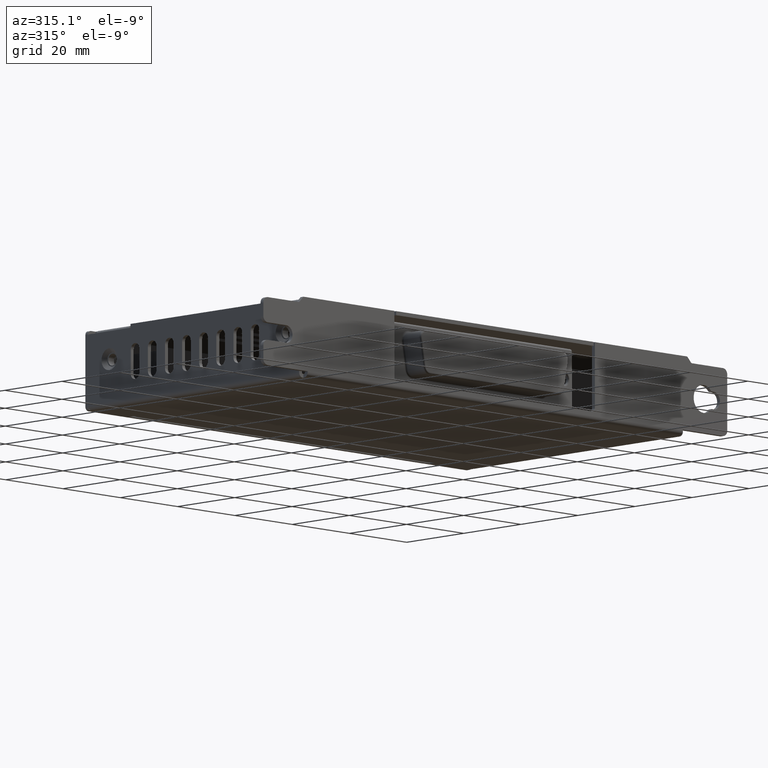
[diagram: clean part render]
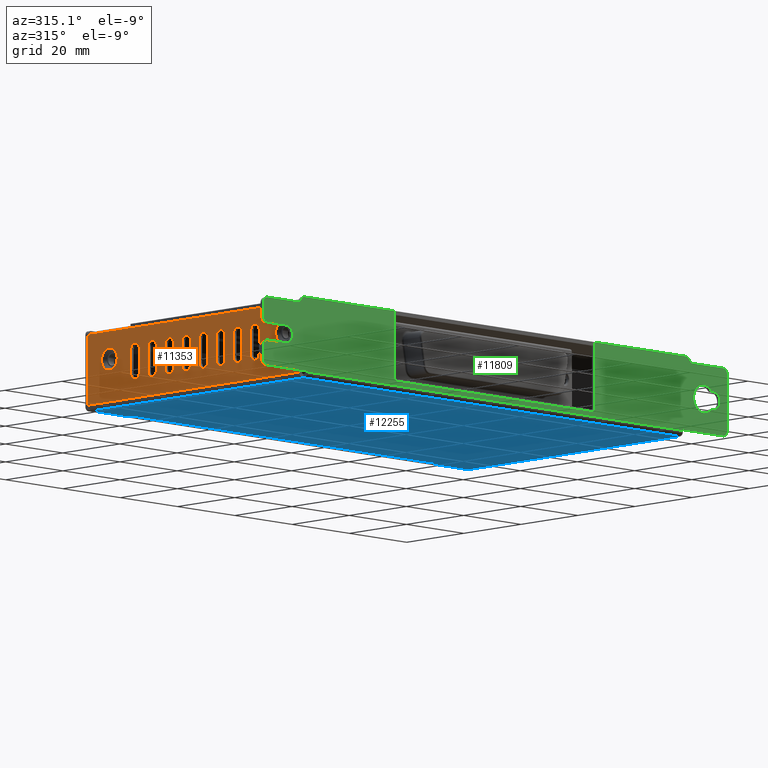
[diagram: same view with three faces highlighted in distinct colors, each labeled with its STEP entity id]
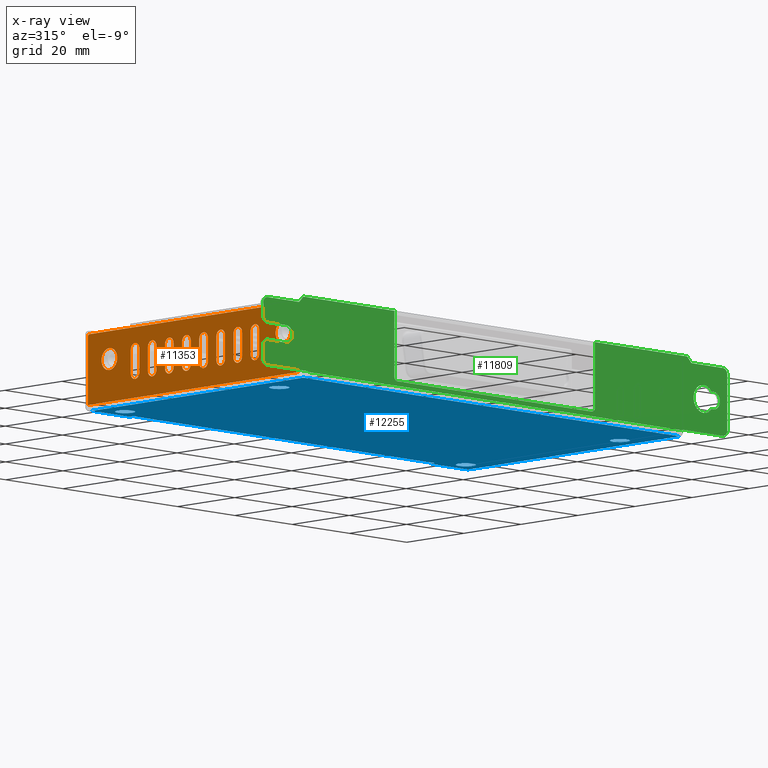
[diagram: x-ray of the same camera — body ghosted, the three highlighted faces saturated]
A machine part, auxiliary view with three faces highlighted in distinct colors.
The next image is the same camera in x-ray (body ghosted, the three faces saturated) — at least one of them is partly hidden behind the body in this view.
Their STEP definitions:

[orange] entity #11353 — the highlighted planar face has unit normal (1, 0, 0).
#10669 = VERTEX_POINT ( 'NONE', #23644 ) ;
#10673 = EDGE_CURVE ( 'NONE', #10669, #10675, #23648, .T. ) ;
#10675 = VERTEX_POINT ( 'NONE', #23638 ) ;
#10683 = VERTEX_POINT ( 'NONE', #23677 ) ;
#10710 = VERTEX_POINT ( 'NONE', #23686 ) ;
#10734 = EDGE_CURVE ( 'NONE', #10710, #10683, #23749, .T. ) ;
#10737 = EDGE_CURVE ( 'NONE', #10801, #10739, #23803, .T. ) ;
#10739 = VERTEX_POINT ( 'NONE', #23743 ) ;
#10742 = VERTEX_POINT ( 'NONE', #23750 ) ;
#10775 = VERTEX_POINT ( 'NONE', #23857 ) ;
#10781 = EDGE_CURVE ( 'NONE', #10790, #10742, #23882, .T. ) ;
#10784 = VERTEX_POINT ( 'NONE', #23886 ) ;
#10788 = VERTEX_POINT ( 'NONE', #23869 ) ;
#10790 = VERTEX_POINT ( 'NONE', #23863 ) ;
#10794 = EDGE_CURVE ( 'NONE', #10742, #10788, #23911, .T. ) ;
#10801 = VERTEX_POINT ( 'NONE', #23906 ) ;
#10809 = EDGE_CURVE ( 'NONE', #10775, #10784, #23937, .T. ) ;
#10819 = EDGE_CURVE ( 'NONE', #10873, #10874, #23970, .T. ) ;
#10826 = EDGE_CURVE ( 'NONE', #10784, #10838, #23950, .T. ) ;
#10836 = EDGE_CURVE ( 'NONE', #10838, #10790, #23945, .T. ) ;
#10838 = VERTEX_POINT ( 'NONE', #23992 ) ;
#10842 = VERTEX_POINT ( 'NONE', #23991 ) ;
#10845 = VERTEX_POINT ( 'NONE', #23978 ) ;
#10853 = VERTEX_POINT ( 'NONE', #23975 ) ;
#10856 = EDGE_CURVE ( 'NONE', #10853, #10845, #23976, .T. ) ;
#10858 = EDGE_CURVE ( 'NONE', #10845, #10842, #24009, .T. ) ;
#10859 = VERTEX_POINT ( 'NONE', #24010 ) ;
#10864 = EDGE_CURVE ( 'NONE', #10842, #10873, #24005, .T. ) ;
#10870 = EDGE_CURVE ( 'NONE', #10788, #10775, #24037, .T. ) ;
#10873 = VERTEX_POINT ( 'NONE', #24043 ) ;
#10874 = VERTEX_POINT ( 'NONE', #24038 ) ;
#10881 = EDGE_CURVE ( 'NONE', #10874, #10859, #24093, .T. ) ;
#10885 = EDGE_CURVE ( 'NONE', #10887, #10888, #24080, .T. ) ;
#10887 = VERTEX_POINT ( 'NONE', #24082 ) ;
#10888 = VERTEX_POINT ( 'NONE', #24048 ) ;
#10896 = EDGE_CURVE ( 'NONE', #10859, #10853, #24065, .T. ) ;
#10911 = EDGE_CURVE ( 'NONE', #10917, #10926, #24095, .T. ) ;
#10917 = VERTEX_POINT ( 'NONE', #24124 ) ;
#10926 = VERTEX_POINT ( 'NONE', #24168 ) ;
#10938 = EDGE_CURVE ( 'NONE', #10939, #10887, #24202, .T. ) ;
#10939 = VERTEX_POINT ( 'NONE', #24162 ) ;
#10941 = EDGE_CURVE ( 'NONE', #10926, #10939, #24160, .T. ) ;
#10952 = EDGE_CURVE ( 'NONE', #10953, #11012, #24182, .T. ) ;
#10953 = VERTEX_POINT ( 'NONE', #24237 ) ;
#10955 = EDGE_CURVE ( 'NONE', #11012, #11013, #24233, .T. ) ;
#10960 = EDGE_CURVE ( 'NONE', #10888, #10974, #24175, .T. ) ;
#10974 = VERTEX_POINT ( 'NONE', #24217 ) ;
#10978 = EDGE_CURVE ( 'NONE', #10974, #10917, #24248, .T. ) ;
#10982 = EDGE_CURVE ( 'NONE', #11046, #11001, #24249, .T. ) ;
#10991 = EDGE_CURVE ( 'NONE', #11001, #11008, #24279, .T. ) ;
#10998 = EDGE_CURVE ( 'NONE', #11008, #10953, #24310, .T. ) ;
#11001 = VERTEX_POINT ( 'NONE', #24300 ) ;
#11008 = VERTEX_POINT ( 'NONE', #24347 ) ;
#11012 = VERTEX_POINT ( 'NONE', #24344 ) ;
#11013 = VERTEX_POINT ( 'NONE', #24342 ) ;
#11018 = EDGE_CURVE ( 'NONE', #11034, #11033, #24328, .T. ) ;
#11033 = VERTEX_POINT ( 'NONE', #24353 ) ;
#11034 = VERTEX_POINT ( 'NONE', #24348 ) ;
#11040 = EDGE_CURVE ( 'NONE', #11013, #11046, #24397, .T. ) ;
#11046 = VERTEX_POINT ( 'NONE', #24403 ) ;
#11061 = EDGE_CURVE ( 'NONE', #11068, #11079, #24387, .T. ) ;
#11068 = VERTEX_POINT ( 'NONE', #24412 ) ;
#11070 = VERTEX_POINT ( 'NONE', #24404 ) ;
#11072 = EDGE_CURVE ( 'NONE', #11070, #11068, #24457, .T. ) ;
#11079 = VERTEX_POINT ( 'NONE', #24417 ) ;
#11081 = EDGE_CURVE ( 'NONE', #11079, #11034, #24441, .T. ) ;
#11090 = VERTEX_POINT ( 'NONE', #24481 ) ;
#11102 = EDGE_CURVE ( 'NONE', #11103, #11070, #24516, .T. ) ;
#11103 = VERTEX_POINT ( 'NONE', #24464 ) ;
#11110 = VERTEX_POINT ( 'NONE', #24507 ) ;
#11112 = EDGE_CURVE ( 'NONE', #11033, #11103, #24505, .T. ) ;
#11115 = EDGE_CURVE ( 'NONE', #11090, #11110, #24548, .T. ) ;
#11120 = EDGE_CURVE ( 'NONE', #11133, #11127, #24540, .T. ) ;
#11127 = VERTEX_POINT ( 'NONE', #24574 ) ;
#11133 = VERTEX_POINT ( 'NONE', #24569 ) ;
#11139 = EDGE_CURVE ( 'NONE', #11127, #11140, #24572, .T. ) ;
#11140 = VERTEX_POINT ( 'NONE', #24567 ) ;
#11149 = EDGE_CURVE ( 'NONE', #11140, #11152, #24580, .T. ) ;
#11151 = EDGE_CURVE ( 'NONE', #11152, #11090, #24586, .T. ) ;
#11152 = VERTEX_POINT ( 'NONE', #24585 ) ;
#11158 = EDGE_CURVE ( 'NONE', #11184, #11185, #24627, .T. ) ;
#11163 = EDGE_CURVE ( 'NONE', #11168, #11184, #24659, .T. ) ;
#11168 = VERTEX_POINT ( 'NONE', #24655 ) ;
#11171 = VERTEX_POINT ( 'NONE', #24607 ) ;
#11175 = EDGE_CURVE ( 'NONE', #11110, #11133, #24642, .T. ) ;
#11181 = EDGE_CURVE ( 'NONE', #11192, #11226, #24687, .T. ) ;
#11184 = VERTEX_POINT ( 'NONE', #24683 ) ;
#11185 = VERTEX_POINT ( 'NONE', #24685 ) ;
#11192 = VERTEX_POINT ( 'NONE', #24677 ) ;
#11218 = EDGE_CURVE ( 'NONE', #11226, #11171, #24738, .T. ) ;
#11224 = EDGE_CURVE ( 'NONE', #11171, #11168, #24716, .T. ) ;
#11226 = VERTEX_POINT ( 'NONE', #24730 ) ;
#11230 = VERTEX_POINT ( 'NONE', #24771 ) ;
#11240 = VERTEX_POINT ( 'NONE', #24751 ) ;
#11247 = EDGE_CURVE ( 'NONE', #11230, #11240, #24792, .T. ) ;
#11253 = EDGE_CURVE ( 'NONE', #11185, #11192, #24781, .T. ) ;
#11257 = EDGE_CURVE ( 'NONE', #11240, #11260, #24783, .T. ) ;
#11260 = VERTEX_POINT ( 'NONE', #24824 ) ;
#11269 = EDGE_CURVE ( 'NONE', #11260, #11276, #24811, .T. ) ;
#11273 = EDGE_CURVE ( 'NONE', #11276, #11279, #24853, .T. ) ;
#11276 = VERTEX_POINT ( 'NONE', #24806 ) ;
#11278 = EDGE_CURVE ( 'NONE', #11281, #11230, #24844, .T. ) ;
#11279 = VERTEX_POINT ( 'NONE', #24822 ) ;
#11281 = VERTEX_POINT ( 'NONE', #24823 ) ;
#11292 = EDGE_CURVE ( 'NONE', #11279, #11281, #24892, .T. ) ;
#11298 = EDGE_CURVE ( 'NONE', #11307, #11303, #24860, .T. ) ;
#11303 = VERTEX_POINT ( 'NONE', #24919 ) ;
#11307 = VERTEX_POINT ( 'NONE', #24911 ) ;
#11313 = EDGE_CURVE ( 'NONE', #10739, #11307, #24896, .T. ) ;
#11320 = EDGE_CURVE ( 'NONE', #10683, #10710, #24932, .T. ) ;
#11325 = EDGE_CURVE ( 'NONE', #10675, #10669, #24927, .T. ) ;
#11331 = ORIENTED_EDGE ( 'NONE', *, *, #11040, .T. ) ;
#11332 = ORIENTED_EDGE ( 'NONE', *, *, #11224, .T. ) ;
#11333 = ORIENTED_EDGE ( 'NONE', *, *, #11120, .T. ) ;
#11334 = ORIENTED_EDGE ( 'NONE', *, *, #11163, .T. ) ;
#11335 = EDGE_LOOP ( 'NONE', ( #11339, #11333, #11342, #11337, #11344, #11340 ) ) ;
#11336 = ORIENTED_EDGE ( 'NONE', *, *, #11158, .T. ) ;
#11337 = ORIENTED_EDGE ( 'NONE', *, *, #11149, .T. ) ;
#11338 = EDGE_LOOP ( 'NONE', ( #11343, #11397, #11396, #11399, #11341, #11401 ) ) ;
#11339 = ORIENTED_EDGE ( 'NONE', *, *, #11175, .T. ) ;
#11340 = ORIENTED_EDGE ( 'NONE', *, *, #11115, .T. ) ;
#11341 = ORIENTED_EDGE ( 'NONE', *, *, #11081, .T. ) ;
#11342 = ORIENTED_EDGE ( 'NONE', *, *, #11139, .T. ) ;
#11343 = ORIENTED_EDGE ( 'NONE', *, *, #11112, .T. ) ;
#11344 = ORIENTED_EDGE ( 'NONE', *, *, #11151, .T. ) ;
#11345 = ORIENTED_EDGE ( 'NONE', *, *, #11292, .T. ) ;
#11346 = ORIENTED_EDGE ( 'NONE', *, *, #11253, .T. ) ;
#11347 = EDGE_LOOP ( 'NONE', ( #11346, #11350, #11349, #11332, #11334, #11336 ) ) ;
#11348 = ORIENTED_EDGE ( 'NONE', *, *, #11257, .T. ) ;
#11349 = ORIENTED_EDGE ( 'NONE', *, *, #11218, .T. ) ;
#11350 = ORIENTED_EDGE ( 'NONE', *, *, #11181, .T. ) ;
#11352 = ORIENTED_EDGE ( 'NONE', *, *, #11278, .T. ) ;
#11353 = ADVANCED_FACE ( 'NONE', ( #24928, #24923, #24968, #24981, #24921, #24975, #24973, #24967, #24966, #24965, #24964 ), #24977, .F. ) ;
#11354 = ORIENTED_EDGE ( 'NONE', *, *, #11273, .T. ) ;
#11355 = ORIENTED_EDGE ( 'NONE', *, *, #10673, .T. ) ;
#11356 = EDGE_LOOP ( 'NONE', ( #11366, #11361 ) ) ;
#11357 = ORIENTED_EDGE ( 'NONE', *, *, #11325, .T. ) ;
#11358 = ORIENTED_EDGE ( 'NONE', *, *, #11269, .T. ) ;
#11359 = ORIENTED_EDGE ( 'NONE', *, *, #11247, .T. ) ;
#11360 = EDGE_LOOP ( 'NONE', ( #11358, #11354, #11345, #11352, #11359, #11348 ) ) ;
#11361 = ORIENTED_EDGE ( 'NONE', *, *, #11320, .T. ) ;
#11365 = EDGE_LOOP ( 'NONE', ( #11355, #11357 ) ) ;
#11366 = ORIENTED_EDGE ( 'NONE', *, *, #10734, .T. ) ;
#11367 = ORIENTED_EDGE ( 'NONE', *, *, #10781, .T. ) ;
#11368 = EDGE_LOOP ( 'NONE', ( #11439, #11373, #11369, #11372, #11426 ) ) ;
#11369 = ORIENTED_EDGE ( 'NONE', *, *, #11374, .F. ) ;
#11372 = ORIENTED_EDGE ( 'NONE', *, *, #10737, .T. ) ;
#11373 = ORIENTED_EDGE ( 'NONE', *, *, #11438, .T. ) ;
#11374 = EDGE_CURVE ( 'NONE', #10801, #11440, #25014, .T. ) ;
#11375 = ORIENTED_EDGE ( 'NONE', *, *, #10938, .T. ) ;
#11376 = EDGE_LOOP ( 'NONE', ( #11394, #11381, #11378, #11377, #11383, #11380 ) ) ;
#11377 = ORIENTED_EDGE ( 'NONE', *, *, #10858, .T. ) ;
#11378 = ORIENTED_EDGE ( 'NONE', *, *, #10856, .T. ) ;
#11380 = ORIENTED_EDGE ( 'NONE', *, *, #10819, .T. ) ;
#11381 = ORIENTED_EDGE ( 'NONE', *, *, #10896, .T. ) ;
#11382 = ORIENTED_EDGE ( 'NONE', *, *, #10870, .T. ) ;
#11383 = ORIENTED_EDGE ( 'NONE', *, *, #10864, .T. ) ;
#11384 = EDGE_LOOP ( 'NONE', ( #11382, #11437, #11386, #11385, #11367, #11436 ) ) ;
#11385 = ORIENTED_EDGE ( 'NONE', *, *, #10836, .T. ) ;
#11386 = ORIENTED_EDGE ( 'NONE', *, *, #10826, .T. ) ;
#11387 = ORIENTED_EDGE ( 'NONE', *, *, #10978, .T. ) ;
#11388 = ORIENTED_EDGE ( 'NONE', *, *, #10952, .T. ) ;
#11389 = EDGE_LOOP ( 'NONE', ( #11391, #11387, #11393, #11390, #11375, #11392 ) ) ;
#11390 = ORIENTED_EDGE ( 'NONE', *, *, #10941, .T. ) ;
#11391 = ORIENTED_EDGE ( 'NONE', *, *, #10960, .T. ) ;
#11392 = ORIENTED_EDGE ( 'NONE', *, *, #10885, .T. ) ;
#11393 = ORIENTED_EDGE ( 'NONE', *, *, #10911, .T. ) ;
#11394 = ORIENTED_EDGE ( 'NONE', *, *, #10881, .T. ) ;
#11395 = ORIENTED_EDGE ( 'NONE', *, *, #10982, .T. ) ;
#11396 = ORIENTED_EDGE ( 'NONE', *, *, #11072, .T. ) ;
#11397 = ORIENTED_EDGE ( 'NONE', *, *, #11102, .T. ) ;
#11398 = ORIENTED_EDGE ( 'NONE', *, *, #10955, .T. ) ;
#11399 = ORIENTED_EDGE ( 'NONE', *, *, #11061, .T. ) ;
#11400 = EDGE_LOOP ( 'NONE', ( #11331, #11395, #11403, #11402, #11388, #11398 ) ) ;
#11401 = ORIENTED_EDGE ( 'NONE', *, *, #11018, .T. ) ;
#11402 = ORIENTED_EDGE ( 'NONE', *, *, #10998, .T. ) ;
#11403 = ORIENTED_EDGE ( 'NONE', *, *, #10991, .T. ) ;
#11426 = ORIENTED_EDGE ( 'NONE', *, *, #11313, .T. ) ;
#11436 = ORIENTED_EDGE ( 'NONE', *, *, #10794, .T. ) ;
#11437 = ORIENTED_EDGE ( 'NONE', *, *, #10809, .T. ) ;
#11438 = EDGE_CURVE ( 'NONE', #11303, #11440, #23856, .T. ) ;
#11439 = ORIENTED_EDGE ( 'NONE', *, *, #11298, .T. ) ;
#11440 = VERTEX_POINT ( 'NONE', #24534 ) ;
#23634 = DIRECTION ( 'NONE',  ( 0.0000000000000000000, 0.0000000000000000000, -1.000000000000000000 ) ) ;
#23635 = DIRECTION ( 'NONE',  ( 1.000000000000000000, 0.0000000000000000000, 0.0000000000000000000 ) ) ;
#23636 = CARTESIAN_POINT ( 'NONE',  ( 8.225453950275380600E-017, 67.99999999999998600, 12.00000000000000200 ) ) ;
#23638 = CARTESIAN_POINT ( 'NONE',  ( 8.225453950275380600E-017, 67.99999999999998600, 9.249999999999969800 ) ) ;
#23644 = CARTESIAN_POINT ( 'NONE',  ( 8.225453950275380600E-017, 67.99999999999998600, 14.75000000000003400 ) ) ;
#23648 = CIRCLE ( 'NONE', #23649, 2.750000000000032000 ) ;
#23649 = AXIS2_PLACEMENT_3D ( 'NONE', #23636, #23635, #23634 ) ;
#23677 = CARTESIAN_POINT ( 'NONE',  ( 8.225453950275380600E-017, 7.000000000000000900, 9.250000000000000000 ) ) ;
#23686 = CARTESIAN_POINT ( 'NONE',  ( 8.225453950275380600E-017, 7.000000000000000900, 14.75000000000000400 ) ) ;
#23743 = CARTESIAN_POINT ( 'NONE',  ( 8.225453950275390500E-017, 75.00000000000000000, 19.00000000000000000 ) ) ;
#23745 = DIRECTION ( 'NONE',  ( 0.0000000000000000000, 0.0000000000000000000, -1.000000000000000000 ) ) ;
#23746 = DIRECTION ( 'NONE',  ( 1.000000000000000000, 0.0000000000000000000, 0.0000000000000000000 ) ) ;
#23747 = CARTESIAN_POINT ( 'NONE',  ( 8.225453950275380600E-017, 7.000000000000000900, 12.00000000000000200 ) ) ;
#23748 = AXIS2_PLACEMENT_3D ( 'NONE', #23747, #23746, #23745 ) ;
#23749 = CIRCLE ( 'NONE', #23748, 2.750000000000002700 ) ;
#23750 = CARTESIAN_POINT ( 'NONE',  ( 8.225453950275390500E-017, 16.99999999999999600, 14.99999999999999800 ) ) ;
#23800 = DIRECTION ( 'NONE',  ( 0.0000000000000000000, 1.000000000000000000, 0.0000000000000000000 ) ) ;
#23801 = VECTOR ( 'NONE', #23800, 1000.000000000000000 ) ;
#23802 = CARTESIAN_POINT ( 'NONE',  ( 8.225453950275390500E-017, 0.0000000000000000000, 19.00000000000000000 ) ) ;
#23803 = LINE ( 'NONE', #23802, #23801 ) ;
#23829 = DIRECTION ( 'NONE',  ( 0.0000000000000000000, -1.000000000000000000, 0.0000000000000000000 ) ) ;
#23845 = VECTOR ( 'NONE', #23829, 1000.000000000000000 ) ;
#23846 = CARTESIAN_POINT ( 'NONE',  ( 2.655126504299269600E-018, 75.50000000000000000, 1.300000000000000700 ) ) ;
#23856 = LINE ( 'NONE', #23846, #23845 ) ;
#23857 = CARTESIAN_POINT ( 'NONE',  ( 8.225453950275385600E-017, 15.49999999999999800, 7.500000000000000000 ) ) ;
#23863 = CARTESIAN_POINT ( 'NONE',  ( 8.225453950275380600E-017, 18.50000000000000000, 13.50000000000000000 ) ) ;
#23869 = CARTESIAN_POINT ( 'NONE',  ( 8.225453950275380600E-017, 15.49999999999999800, 13.50000000000000000 ) ) ;
#23878 = DIRECTION ( 'NONE',  ( 0.0000000000000000000, 0.0000000000000000000, -1.000000000000000000 ) ) ;
#23879 = DIRECTION ( 'NONE',  ( 1.000000000000000000, 0.0000000000000000000, 0.0000000000000000000 ) ) ;
#23880 = CARTESIAN_POINT ( 'NONE',  ( 8.225453950275380600E-017, 16.99999999999999600, 13.50000000000000000 ) ) ;
#23881 = AXIS2_PLACEMENT_3D ( 'NONE', #23880, #23879, #23878 ) ;
#23882 = CIRCLE ( 'NONE', #23881, 1.499999999999999600 ) ;
#23886 = CARTESIAN_POINT ( 'NONE',  ( 8.225453950275385600E-017, 16.99999999999999600, 6.000000000000000000 ) ) ;
#23905 = AXIS2_PLACEMENT_3D ( 'NONE', #23936, #23935, #23934 ) ;
#23906 = CARTESIAN_POINT ( 'NONE',  ( 8.225453950275390500E-017, 1.500000000000000000, 19.00000000000000000 ) ) ;
#23907 = DIRECTION ( 'NONE',  ( 0.0000000000000000000, 0.0000000000000000000, -1.000000000000000000 ) ) ;
#23908 = DIRECTION ( 'NONE',  ( 1.000000000000000000, 0.0000000000000000000, 0.0000000000000000000 ) ) ;
#23909 = CARTESIAN_POINT ( 'NONE',  ( 8.225453950275380600E-017, 16.99999999999999600, 13.50000000000000000 ) ) ;
#23910 = AXIS2_PLACEMENT_3D ( 'NONE', #23909, #23908, #23907 ) ;
#23911 = CIRCLE ( 'NONE', #23910, 1.499999999999999600 ) ;
#23917 = CARTESIAN_POINT ( 'NONE',  ( 8.225453950275390500E-017, 18.50000000000000000, 20.00000000000000000 ) ) ;
#23921 = AXIS2_PLACEMENT_3D ( 'NONE', #23969, #23968, #23967 ) ;
#23934 = DIRECTION ( 'NONE',  ( 0.0000000000000000000, 0.0000000000000000000, -1.000000000000000000 ) ) ;
#23935 = DIRECTION ( 'NONE',  ( 1.000000000000000000, 0.0000000000000000000, 0.0000000000000000000 ) ) ;
#23936 = CARTESIAN_POINT ( 'NONE',  ( 8.225453950275385600E-017, 16.99999999999999600, 7.500000000000000000 ) ) ;
#23937 = CIRCLE ( 'NONE', #23905, 1.499999999999999600 ) ;
#23940 = CARTESIAN_POINT ( 'NONE',  ( 8.225453950275385600E-017, 16.99999999999999600, 7.500000000000000000 ) ) ;
#23945 = LINE ( 'NONE', #23917, #23962 ) ;
#23948 = DIRECTION ( 'NONE',  ( 0.0000000000000000000, 0.0000000000000000000, -1.000000000000000000 ) ) ;
#23949 = DIRECTION ( 'NONE',  ( 1.000000000000000000, 0.0000000000000000000, 0.0000000000000000000 ) ) ;
#23950 = CIRCLE ( 'NONE', #23957, 1.499999999999999600 ) ;
#23957 = AXIS2_PLACEMENT_3D ( 'NONE', #23940, #23949, #23948 ) ;
#23962 = VECTOR ( 'NONE', #23994, 1000.000000000000000 ) ;
#23967 = DIRECTION ( 'NONE',  ( 0.0000000000000000000, 0.0000000000000000000, -1.000000000000000000 ) ) ;
#23968 = DIRECTION ( 'NONE',  ( 1.000000000000000000, 0.0000000000000000000, 0.0000000000000000000 ) ) ;
#23969 = CARTESIAN_POINT ( 'NONE',  ( 8.225453950275380600E-017, 23.00000000000000000, 13.50000000000000000 ) ) ;
#23970 = CIRCLE ( 'NONE', #23921, 1.499999999999999600 ) ;
#23975 = CARTESIAN_POINT ( 'NONE',  ( 8.225453950275385600E-017, 22.99999999999999600, 6.000000000000000000 ) ) ;
#23976 = CIRCLE ( 'NONE', #24020, 1.499999999999999600 ) ;
#23978 = CARTESIAN_POINT ( 'NONE',  ( 8.225453950275385600E-017, 24.49999999999999600, 7.500000000000000000 ) ) ;
#23991 = CARTESIAN_POINT ( 'NONE',  ( 8.225453950275380600E-017, 24.49999999999999600, 13.50000000000000000 ) ) ;
#23992 = CARTESIAN_POINT ( 'NONE',  ( 8.225453950275385600E-017, 18.50000000000000000, 7.500000000000000000 ) ) ;
#23994 = DIRECTION ( 'NONE',  ( 0.0000000000000000000, 0.0000000000000000000, 1.000000000000000000 ) ) ;
#24005 = CIRCLE ( 'NONE', #24055, 1.499999999999999600 ) ;
#24006 = DIRECTION ( 'NONE',  ( 0.0000000000000000000, 0.0000000000000000000, 1.000000000000000000 ) ) ;
#24007 = VECTOR ( 'NONE', #24006, 1000.000000000000000 ) ;
#24008 = CARTESIAN_POINT ( 'NONE',  ( 8.225453950275390500E-017, 24.49999999999999600, 20.00000000000000000 ) ) ;
#24009 = LINE ( 'NONE', #24008, #24007 ) ;
#24010 = CARTESIAN_POINT ( 'NONE',  ( 8.225453950275385600E-017, 21.50000000000000000, 7.500000000000000000 ) ) ;
#24013 = DIRECTION ( 'NONE',  ( 0.0000000000000000000, 0.0000000000000000000, -1.000000000000000000 ) ) ;
#24014 = DIRECTION ( 'NONE',  ( 1.000000000000000000, 0.0000000000000000000, 0.0000000000000000000 ) ) ;
#24018 = CARTESIAN_POINT ( 'NONE',  ( 8.225453950275380600E-017, 22.99999999999999600, 13.50000000000000000 ) ) ;
#24019 = CARTESIAN_POINT ( 'NONE',  ( 8.225453950275385600E-017, 22.99999999999999600, 7.500000000000000000 ) ) ;
#24020 = AXIS2_PLACEMENT_3D ( 'NONE', #24019, #24014, #24013 ) ;
#24032 = CARTESIAN_POINT ( 'NONE',  ( 8.225453950275380600E-017, 28.99999999999999600, 13.50000000000000000 ) ) ;
#24033 = AXIS2_PLACEMENT_3D ( 'NONE', #24032, #24079, #24078 ) ;
#24034 = DIRECTION ( 'NONE',  ( 0.0000000000000000000, 0.0000000000000000000, -1.000000000000000000 ) ) ;
#24035 = VECTOR ( 'NONE', #24034, 1000.000000000000000 ) ;
#24036 = CARTESIAN_POINT ( 'NONE',  ( 8.225453950275390500E-017, 15.49999999999999800, 20.00000000000000000 ) ) ;
#24037 = LINE ( 'NONE', #24036, #24035 ) ;
#24038 = CARTESIAN_POINT ( 'NONE',  ( 8.225453950275380600E-017, 21.50000000000000000, 13.50000000000000000 ) ) ;
#24043 = CARTESIAN_POINT ( 'NONE',  ( 8.225453950275390500E-017, 23.00000000000000000, 14.99999999999999800 ) ) ;
#24046 = DIRECTION ( 'NONE',  ( 0.0000000000000000000, 0.0000000000000000000, -1.000000000000000000 ) ) ;
#24047 = DIRECTION ( 'NONE',  ( 1.000000000000000000, 0.0000000000000000000, 0.0000000000000000000 ) ) ;
#24048 = CARTESIAN_POINT ( 'NONE',  ( 8.225453950275380600E-017, 27.49999999999999600, 13.50000000000000000 ) ) ;
#24055 = AXIS2_PLACEMENT_3D ( 'NONE', #24018, #24047, #24046 ) ;
#24062 = DIRECTION ( 'NONE',  ( 0.0000000000000000000, 0.0000000000000000000, -1.000000000000000000 ) ) ;
#24063 = DIRECTION ( 'NONE',  ( 1.000000000000000000, 0.0000000000000000000, 0.0000000000000000000 ) ) ;
#24064 = CARTESIAN_POINT ( 'NONE',  ( 8.225453950275385600E-017, 23.00000000000000000, 7.500000000000000000 ) ) ;
#24065 = CIRCLE ( 'NONE', #24077, 1.499999999999999600 ) ;
#24077 = AXIS2_PLACEMENT_3D ( 'NONE', #24064, #24063, #24062 ) ;
#24078 = DIRECTION ( 'NONE',  ( 0.0000000000000000000, 0.0000000000000000000, -1.000000000000000000 ) ) ;
#24079 = DIRECTION ( 'NONE',  ( 1.000000000000000000, 0.0000000000000000000, 0.0000000000000000000 ) ) ;
#24080 = CIRCLE ( 'NONE', #24033, 1.499999999999999600 ) ;
#24082 = CARTESIAN_POINT ( 'NONE',  ( 8.225453950275390500E-017, 28.99999999999999600, 14.99999999999999800 ) ) ;
#24090 = DIRECTION ( 'NONE',  ( 0.0000000000000000000, 0.0000000000000000000, -1.000000000000000000 ) ) ;
#24091 = VECTOR ( 'NONE', #24090, 1000.000000000000000 ) ;
#24092 = CARTESIAN_POINT ( 'NONE',  ( 8.225453950275390500E-017, 21.50000000000000000, 20.00000000000000000 ) ) ;
#24093 = LINE ( 'NONE', #24092, #24091 ) ;
#24095 = CIRCLE ( 'NONE', #24145, 1.499999999999999600 ) ;
#24098 = CARTESIAN_POINT ( 'NONE',  ( 8.225453950275385600E-017, 28.99999999999999300, 7.500000000000000000 ) ) ;
#24124 = CARTESIAN_POINT ( 'NONE',  ( 8.225453950275385600E-017, 28.99999999999999300, 6.000000000000000000 ) ) ;
#24136 = DIRECTION ( 'NONE',  ( 0.0000000000000000000, 0.0000000000000000000, -1.000000000000000000 ) ) ;
#24137 = DIRECTION ( 'NONE',  ( 1.000000000000000000, 0.0000000000000000000, 0.0000000000000000000 ) ) ;
#24145 = AXIS2_PLACEMENT_3D ( 'NONE', #24098, #24137, #24136 ) ;
#24160 = LINE ( 'NONE', #24193, #24192 ) ;
#24162 = CARTESIAN_POINT ( 'NONE',  ( 8.225453950275380600E-017, 30.49999999999999600, 13.50000000000000000 ) ) ;
#24168 = CARTESIAN_POINT ( 'NONE',  ( 8.225453950275385600E-017, 30.49999999999999600, 7.500000000000000000 ) ) ;
#24175 = LINE ( 'NONE', #24226, #24225 ) ;
#24182 = CIRCLE ( 'NONE', #24187, 1.499999999999999600 ) ;
#24187 = AXIS2_PLACEMENT_3D ( 'NONE', #24190, #24235, #24234 ) ;
#24188 = AXIS2_PLACEMENT_3D ( 'NONE', #24231, #24230, #24229 ) ;
#24190 = CARTESIAN_POINT ( 'NONE',  ( 8.225453950275380600E-017, 40.99999999999999300, 13.50000000000000000 ) ) ;
#24191 = DIRECTION ( 'NONE',  ( 0.0000000000000000000, 0.0000000000000000000, 1.000000000000000000 ) ) ;
#24192 = VECTOR ( 'NONE', #24191, 1000.000000000000000 ) ;
#24193 = CARTESIAN_POINT ( 'NONE',  ( 8.225453950275390500E-017, 30.49999999999999600, 20.00000000000000000 ) ) ;
#24198 = DIRECTION ( 'NONE',  ( 0.0000000000000000000, 0.0000000000000000000, -1.000000000000000000 ) ) ;
#24199 = DIRECTION ( 'NONE',  ( 1.000000000000000000, 0.0000000000000000000, 0.0000000000000000000 ) ) ;
#24200 = CARTESIAN_POINT ( 'NONE',  ( 8.225453950275380600E-017, 28.99999999999999300, 13.50000000000000000 ) ) ;
#24201 = AXIS2_PLACEMENT_3D ( 'NONE', #24200, #24199, #24198 ) ;
#24202 = CIRCLE ( 'NONE', #24201, 1.499999999999999600 ) ;
#24213 = AXIS2_PLACEMENT_3D ( 'NONE', #24247, #24246, #24245 ) ;
#24217 = CARTESIAN_POINT ( 'NONE',  ( 8.225453950275385600E-017, 27.49999999999999600, 7.500000000000000000 ) ) ;
#24224 = DIRECTION ( 'NONE',  ( 0.0000000000000000000, 0.0000000000000000000, -1.000000000000000000 ) ) ;
#24225 = VECTOR ( 'NONE', #24224, 1000.000000000000000 ) ;
#24226 = CARTESIAN_POINT ( 'NONE',  ( 8.225453950275390500E-017, 27.49999999999999600, 20.00000000000000000 ) ) ;
#24229 = DIRECTION ( 'NONE',  ( 0.0000000000000000000, 0.0000000000000000000, -1.000000000000000000 ) ) ;
#24230 = DIRECTION ( 'NONE',  ( 1.000000000000000000, 0.0000000000000000000, 0.0000000000000000000 ) ) ;
#24231 = CARTESIAN_POINT ( 'NONE',  ( 8.225453950275380600E-017, 40.99999999999999300, 13.50000000000000000 ) ) ;
#24233 = CIRCLE ( 'NONE', #24188, 1.499999999999999600 ) ;
#24234 = DIRECTION ( 'NONE',  ( 0.0000000000000000000, 0.0000000000000000000, -1.000000000000000000 ) ) ;
#24235 = DIRECTION ( 'NONE',  ( 1.000000000000000000, 0.0000000000000000000, 0.0000000000000000000 ) ) ;
#24237 = CARTESIAN_POINT ( 'NONE',  ( 8.225453950275380600E-017, 42.49999999999999300, 13.50000000000000000 ) ) ;
#24245 = DIRECTION ( 'NONE',  ( 0.0000000000000000000, 0.0000000000000000000, -1.000000000000000000 ) ) ;
#24246 = DIRECTION ( 'NONE',  ( 1.000000000000000000, 0.0000000000000000000, 0.0000000000000000000 ) ) ;
#24247 = CARTESIAN_POINT ( 'NONE',  ( 8.225453950275385600E-017, 28.99999999999999600, 7.500000000000000000 ) ) ;
#24248 = CIRCLE ( 'NONE', #24213, 1.499999999999999600 ) ;
#24249 = CIRCLE ( 'NONE', #24253, 1.499999999999999600 ) ;
#24252 = CARTESIAN_POINT ( 'NONE',  ( 8.225453950275385600E-017, 40.99999999999999300, 7.500000000000000000 ) ) ;
#24253 = AXIS2_PLACEMENT_3D ( 'NONE', #24287, #24286, #24285 ) ;
#24262 = DIRECTION ( 'NONE',  ( 0.0000000000000000000, 0.0000000000000000000, -1.000000000000000000 ) ) ;
#24263 = DIRECTION ( 'NONE',  ( 1.000000000000000000, 0.0000000000000000000, 0.0000000000000000000 ) ) ;
#24279 = CIRCLE ( 'NONE', #24288, 1.499999999999999600 ) ;
#24285 = DIRECTION ( 'NONE',  ( 0.0000000000000000000, 0.0000000000000000000, -1.000000000000000000 ) ) ;
#24286 = DIRECTION ( 'NONE',  ( 1.000000000000000000, 0.0000000000000000000, 0.0000000000000000000 ) ) ;
#24287 = CARTESIAN_POINT ( 'NONE',  ( 8.225453950275385600E-017, 40.99999999999999300, 7.500000000000000000 ) ) ;
#24288 = AXIS2_PLACEMENT_3D ( 'NONE', #24252, #24263, #24262 ) ;
#24300 = CARTESIAN_POINT ( 'NONE',  ( 8.225453950275385600E-017, 40.99999999999999300, 6.000000000000000000 ) ) ;
#24305 = DIRECTION ( 'NONE',  ( 0.0000000000000000000, 0.0000000000000000000, 1.000000000000000000 ) ) ;
#24306 = VECTOR ( 'NONE', #24305, 1000.000000000000000 ) ;
#24307 = CARTESIAN_POINT ( 'NONE',  ( 8.225453950275390500E-017, 42.49999999999999300, 20.00000000000000000 ) ) ;
#24310 = LINE ( 'NONE', #24307, #24306 ) ;
#24324 = DIRECTION ( 'NONE',  ( 0.0000000000000000000, 0.0000000000000000000, -1.000000000000000000 ) ) ;
#24325 = DIRECTION ( 'NONE',  ( 1.000000000000000000, 0.0000000000000000000, 0.0000000000000000000 ) ) ;
#24326 = CARTESIAN_POINT ( 'NONE',  ( 8.225453950275380600E-017, 46.99999999999999300, 13.50000000000000000 ) ) ;
#24327 = AXIS2_PLACEMENT_3D ( 'NONE', #24326, #24325, #24324 ) ;
#24328 = CIRCLE ( 'NONE', #24327, 1.499999999999999600 ) ;
#24342 = CARTESIAN_POINT ( 'NONE',  ( 8.225453950275380600E-017, 39.49999999999999300, 13.50000000000000000 ) ) ;
#24344 = CARTESIAN_POINT ( 'NONE',  ( 8.225453950275390500E-017, 40.99999999999999300, 14.99999999999999800 ) ) ;
#24347 = CARTESIAN_POINT ( 'NONE',  ( 8.225453950275385600E-017, 42.49999999999999300, 7.500000000000000000 ) ) ;
#24348 = CARTESIAN_POINT ( 'NONE',  ( 8.225453950275390500E-017, 46.99999999999999300, 14.99999999999999800 ) ) ;
#24353 = CARTESIAN_POINT ( 'NONE',  ( 8.225453950275380600E-017, 45.49999999999999300, 13.50000000000000000 ) ) ;
#24387 = LINE ( 'NONE', #24421, #24420 ) ;
#24394 = DIRECTION ( 'NONE',  ( 0.0000000000000000000, 0.0000000000000000000, -1.000000000000000000 ) ) ;
#24395 = VECTOR ( 'NONE', #24394, 1000.000000000000000 ) ;
#24396 = CARTESIAN_POINT ( 'NONE',  ( 8.225453950275390500E-017, 39.49999999999999300, 20.00000000000000000 ) ) ;
#24397 = LINE ( 'NONE', #24396, #24395 ) ;
#24403 = CARTESIAN_POINT ( 'NONE',  ( 8.225453950275385600E-017, 39.49999999999999300, 7.500000000000000000 ) ) ;
#24404 = CARTESIAN_POINT ( 'NONE',  ( 8.225453950275385600E-017, 46.99999999999999300, 6.000000000000000000 ) ) ;
#24412 = CARTESIAN_POINT ( 'NONE',  ( 8.225453950275385600E-017, 48.49999999999999300, 7.500000000000000000 ) ) ;
#24417 = CARTESIAN_POINT ( 'NONE',  ( 8.225453950275380600E-017, 48.49999999999999300, 13.50000000000000000 ) ) ;
#24419 = DIRECTION ( 'NONE',  ( 0.0000000000000000000, 0.0000000000000000000, 1.000000000000000000 ) ) ;
#24420 = VECTOR ( 'NONE', #24419, 1000.000000000000000 ) ;
#24421 = CARTESIAN_POINT ( 'NONE',  ( 8.225453950275390500E-017, 48.49999999999999300, 20.00000000000000000 ) ) ;
#24438 = DIRECTION ( 'NONE',  ( 0.0000000000000000000, 0.0000000000000000000, -1.000000000000000000 ) ) ;
#24439 = DIRECTION ( 'NONE',  ( 1.000000000000000000, 0.0000000000000000000, 0.0000000000000000000 ) ) ;
#24440 = CARTESIAN_POINT ( 'NONE',  ( 8.225453950275380600E-017, 46.99999999999999300, 13.50000000000000000 ) ) ;
#24441 = CIRCLE ( 'NONE', #24451, 1.499999999999999600 ) ;
#24451 = AXIS2_PLACEMENT_3D ( 'NONE', #24440, #24439, #24438 ) ;
#24453 = DIRECTION ( 'NONE',  ( 0.0000000000000000000, 0.0000000000000000000, -1.000000000000000000 ) ) ;
#24454 = DIRECTION ( 'NONE',  ( 1.000000000000000000, 0.0000000000000000000, 0.0000000000000000000 ) ) ;
#24455 = CARTESIAN_POINT ( 'NONE',  ( 8.225453950275385600E-017, 46.99999999999999300, 7.500000000000000000 ) ) ;
#24456 = AXIS2_PLACEMENT_3D ( 'NONE', #24455, #24454, #24453 ) ;
#24457 = CIRCLE ( 'NONE', #24456, 1.499999999999999600 ) ;
#24464 = CARTESIAN_POINT ( 'NONE',  ( 8.225453950275385600E-017, 45.49999999999999300, 7.500000000000000000 ) ) ;
#24480 = AXIS2_PLACEMENT_3D ( 'NONE', #24515, #24514, #24513 ) ;
#24481 = CARTESIAN_POINT ( 'NONE',  ( 8.225453950275390500E-017, 52.99999999999999300, 14.99999999999999800 ) ) ;
#24497 = DIRECTION ( 'NONE',  ( 0.0000000000000000000, 0.0000000000000000000, -1.000000000000000000 ) ) ;
#24498 = VECTOR ( 'NONE', #24497, 1000.000000000000000 ) ;
#24499 = CARTESIAN_POINT ( 'NONE',  ( 8.225453950275390500E-017, 45.49999999999999300, 20.00000000000000000 ) ) ;
#24505 = LINE ( 'NONE', #24499, #24498 ) ;
#24506 = AXIS2_PLACEMENT_3D ( 'NONE', #24544, #24543, #24542 ) ;
#24507 = CARTESIAN_POINT ( 'NONE',  ( 8.225453950275380600E-017, 51.49999999999999300, 13.50000000000000000 ) ) ;
#24513 = DIRECTION ( 'NONE',  ( 0.0000000000000000000, 0.0000000000000000000, -1.000000000000000000 ) ) ;
#24514 = DIRECTION ( 'NONE',  ( 1.000000000000000000, 0.0000000000000000000, 0.0000000000000000000 ) ) ;
#24515 = CARTESIAN_POINT ( 'NONE',  ( 8.225453950275385600E-017, 46.99999999999999300, 7.500000000000000000 ) ) ;
#24516 = CIRCLE ( 'NONE', #24480, 1.499999999999999600 ) ;
#24534 = CARTESIAN_POINT ( 'NONE',  ( 2.655126504299273400E-018, 1.500000000000001300, 1.300000000000000700 ) ) ;
#24536 = DIRECTION ( 'NONE',  ( 0.0000000000000000000, 0.0000000000000000000, -1.000000000000000000 ) ) ;
#24537 = DIRECTION ( 'NONE',  ( 1.000000000000000000, 0.0000000000000000000, 0.0000000000000000000 ) ) ;
#24538 = CARTESIAN_POINT ( 'NONE',  ( 8.225453950275385600E-017, 52.99999999999999300, 7.500000000000000000 ) ) ;
#24539 = AXIS2_PLACEMENT_3D ( 'NONE', #24538, #24537, #24536 ) ;
#24540 = CIRCLE ( 'NONE', #24539, 1.499999999999999600 ) ;
#24542 = DIRECTION ( 'NONE',  ( 0.0000000000000000000, 0.0000000000000000000, -1.000000000000000000 ) ) ;
#24543 = DIRECTION ( 'NONE',  ( 1.000000000000000000, 0.0000000000000000000, 0.0000000000000000000 ) ) ;
#24544 = CARTESIAN_POINT ( 'NONE',  ( 8.225453950275380600E-017, 52.99999999999999300, 13.50000000000000000 ) ) ;
#24548 = CIRCLE ( 'NONE', #24506, 1.499999999999999600 ) ;
#24551 = DIRECTION ( 'NONE',  ( 0.0000000000000000000, 0.0000000000000000000, -1.000000000000000000 ) ) ;
#24552 = DIRECTION ( 'NONE',  ( 1.000000000000000000, 0.0000000000000000000, 0.0000000000000000000 ) ) ;
#24553 = CARTESIAN_POINT ( 'NONE',  ( 8.225453950275385600E-017, 52.99999999999999300, 7.500000000000000000 ) ) ;
#24554 = AXIS2_PLACEMENT_3D ( 'NONE', #24553, #24552, #24551 ) ;
#24567 = CARTESIAN_POINT ( 'NONE',  ( 8.225453950275385600E-017, 54.49999999999999300, 7.500000000000000000 ) ) ;
#24569 = CARTESIAN_POINT ( 'NONE',  ( 8.225453950275385600E-017, 51.49999999999999300, 7.500000000000000000 ) ) ;
#24572 = CIRCLE ( 'NONE', #24554, 1.499999999999999600 ) ;
#24574 = CARTESIAN_POINT ( 'NONE',  ( 8.225453950275385600E-017, 52.99999999999999300, 6.000000000000000000 ) ) ;
#24577 = DIRECTION ( 'NONE',  ( 0.0000000000000000000, 0.0000000000000000000, 1.000000000000000000 ) ) ;
#24578 = VECTOR ( 'NONE', #24577, 1000.000000000000000 ) ;
#24579 = CARTESIAN_POINT ( 'NONE',  ( 8.225453950275390500E-017, 54.49999999999999300, 20.00000000000000000 ) ) ;
#24580 = LINE ( 'NONE', #24579, #24578 ) ;
#24584 = AXIS2_PLACEMENT_3D ( 'NONE', #24632, #24631, #24630 ) ;
#24585 = CARTESIAN_POINT ( 'NONE',  ( 8.225453950275380600E-017, 54.49999999999999300, 13.50000000000000000 ) ) ;
#24586 = CIRCLE ( 'NONE', #24584, 1.499999999999999600 ) ;
#24607 = CARTESIAN_POINT ( 'NONE',  ( 8.225453950275385600E-017, 60.49999999999999300, 7.500000000000000000 ) ) ;
#24610 = DIRECTION ( 'NONE',  ( 0.0000000000000000000, 0.0000000000000000000, -1.000000000000000000 ) ) ;
#24611 = DIRECTION ( 'NONE',  ( 1.000000000000000000, 0.0000000000000000000, 0.0000000000000000000 ) ) ;
#24612 = CARTESIAN_POINT ( 'NONE',  ( 8.225453950275380600E-017, 58.99999999999999300, 13.50000000000000000 ) ) ;
#24621 = AXIS2_PLACEMENT_3D ( 'NONE', #24658, #24657, #24656 ) ;
#24625 = AXIS2_PLACEMENT_3D ( 'NONE', #24612, #24611, #24610 ) ;
#24627 = CIRCLE ( 'NONE', #24625, 1.499999999999999600 ) ;
#24630 = DIRECTION ( 'NONE',  ( 0.0000000000000000000, 0.0000000000000000000, -1.000000000000000000 ) ) ;
#24631 = DIRECTION ( 'NONE',  ( 1.000000000000000000, 0.0000000000000000000, 0.0000000000000000000 ) ) ;
#24632 = CARTESIAN_POINT ( 'NONE',  ( 8.225453950275380600E-017, 52.99999999999999300, 13.50000000000000000 ) ) ;
#24638 = AXIS2_PLACEMENT_3D ( 'NONE', #24653, #24643, #24684 ) ;
#24639 = DIRECTION ( 'NONE',  ( 0.0000000000000000000, 0.0000000000000000000, -1.000000000000000000 ) ) ;
#24640 = VECTOR ( 'NONE', #24639, 1000.000000000000000 ) ;
#24641 = CARTESIAN_POINT ( 'NONE',  ( 8.225453950275390500E-017, 51.49999999999999300, 20.00000000000000000 ) ) ;
#24642 = LINE ( 'NONE', #24641, #24640 ) ;
#24643 = DIRECTION ( 'NONE',  ( 1.000000000000000000, 0.0000000000000000000, 0.0000000000000000000 ) ) ;
#24653 = CARTESIAN_POINT ( 'NONE',  ( 8.225453950275385600E-017, 58.99999999999999300, 7.500000000000000000 ) ) ;
#24655 = CARTESIAN_POINT ( 'NONE',  ( 8.225453950275380600E-017, 60.49999999999999300, 13.50000000000000000 ) ) ;
#24656 = DIRECTION ( 'NONE',  ( 0.0000000000000000000, 0.0000000000000000000, -1.000000000000000000 ) ) ;
#24657 = DIRECTION ( 'NONE',  ( 1.000000000000000000, 0.0000000000000000000, 0.0000000000000000000 ) ) ;
#24658 = CARTESIAN_POINT ( 'NONE',  ( 8.225453950275380600E-017, 58.99999999999999300, 13.50000000000000000 ) ) ;
#24659 = CIRCLE ( 'NONE', #24621, 1.499999999999999600 ) ;
#24677 = CARTESIAN_POINT ( 'NONE',  ( 8.225453950275385600E-017, 57.49999999999998600, 7.500000000000000000 ) ) ;
#24683 = CARTESIAN_POINT ( 'NONE',  ( 8.225453950275390500E-017, 58.99999999999999300, 14.99999999999999800 ) ) ;
#24684 = DIRECTION ( 'NONE',  ( 0.0000000000000000000, 0.0000000000000000000, -1.000000000000000000 ) ) ;
#24685 = CARTESIAN_POINT ( 'NONE',  ( 8.225453950275380600E-017, 57.49999999999998600, 13.50000000000000000 ) ) ;
#24687 = CIRCLE ( 'NONE', #24638, 1.499999999999999600 ) ;
#24716 = LINE ( 'NONE', #24777, #24776 ) ;
#24726 = DIRECTION ( 'NONE',  ( 0.0000000000000000000, 0.0000000000000000000, -1.000000000000000000 ) ) ;
#24727 = DIRECTION ( 'NONE',  ( 1.000000000000000000, 0.0000000000000000000, 0.0000000000000000000 ) ) ;
#24728 = CARTESIAN_POINT ( 'NONE',  ( 8.225453950275385600E-017, 58.99999999999999300, 7.500000000000000000 ) ) ;
#24729 = AXIS2_PLACEMENT_3D ( 'NONE', #24728, #24727, #24726 ) ;
#24730 = CARTESIAN_POINT ( 'NONE',  ( 8.225453950275385600E-017, 58.99999999999999300, 6.000000000000000000 ) ) ;
#24738 = CIRCLE ( 'NONE', #24729, 1.499999999999999600 ) ;
#24751 = CARTESIAN_POINT ( 'NONE',  ( 8.225453950275390500E-017, 34.99999999999999300, 14.99999999999999800 ) ) ;
#24771 = CARTESIAN_POINT ( 'NONE',  ( 8.225453950275380600E-017, 36.50000000000000000, 13.50000000000000000 ) ) ;
#24775 = DIRECTION ( 'NONE',  ( 0.0000000000000000000, 0.0000000000000000000, 1.000000000000000000 ) ) ;
#24776 = VECTOR ( 'NONE', #24775, 1000.000000000000000 ) ;
#24777 = CARTESIAN_POINT ( 'NONE',  ( 8.225453950275390500E-017, 60.49999999999999300, 20.00000000000000000 ) ) ;
#24778 = DIRECTION ( 'NONE',  ( 0.0000000000000000000, 0.0000000000000000000, -1.000000000000000000 ) ) ;
#24779 = VECTOR ( 'NONE', #24778, 1000.000000000000000 ) ;
#24780 = CARTESIAN_POINT ( 'NONE',  ( 8.225453950275390500E-017, 57.49999999999998600, 20.00000000000000000 ) ) ;
#24781 = LINE ( 'NONE', #24780, #24779 ) ;
#24783 = CIRCLE ( 'NONE', #24802, 1.499999999999999600 ) ;
#24789 = DIRECTION ( 'NONE',  ( 0.0000000000000000000, 0.0000000000000000000, -1.000000000000000000 ) ) ;
#24790 = DIRECTION ( 'NONE',  ( 1.000000000000000000, 0.0000000000000000000, 0.0000000000000000000 ) ) ;
#24791 = CARTESIAN_POINT ( 'NONE',  ( 8.225453950275380600E-017, 34.99999999999999300, 13.50000000000000000 ) ) ;
#24792 = CIRCLE ( 'NONE', #24798, 1.499999999999999600 ) ;
#24798 = AXIS2_PLACEMENT_3D ( 'NONE', #24791, #24790, #24789 ) ;
#24802 = AXIS2_PLACEMENT_3D ( 'NONE', #24833, #24832, #24831 ) ;
#24806 = CARTESIAN_POINT ( 'NONE',  ( 8.225453950275385600E-017, 33.49999999999999300, 7.500000000000000000 ) ) ;
#24808 = DIRECTION ( 'NONE',  ( 0.0000000000000000000, 0.0000000000000000000, -1.000000000000000000 ) ) ;
#24809 = VECTOR ( 'NONE', #24808, 1000.000000000000000 ) ;
#24810 = CARTESIAN_POINT ( 'NONE',  ( 8.225453950275390500E-017, 33.49999999999999300, 20.00000000000000000 ) ) ;
#24811 = LINE ( 'NONE', #24810, #24809 ) ;
#24822 = CARTESIAN_POINT ( 'NONE',  ( 8.225453950275385600E-017, 34.99999999999999300, 6.000000000000000000 ) ) ;
#24823 = CARTESIAN_POINT ( 'NONE',  ( 8.225453950275385600E-017, 36.50000000000000000, 7.500000000000000000 ) ) ;
#24824 = CARTESIAN_POINT ( 'NONE',  ( 8.225453950275380600E-017, 33.49999999999999300, 13.50000000000000000 ) ) ;
#24831 = DIRECTION ( 'NONE',  ( 0.0000000000000000000, 0.0000000000000000000, -1.000000000000000000 ) ) ;
#24832 = DIRECTION ( 'NONE',  ( 1.000000000000000000, 0.0000000000000000000, 0.0000000000000000000 ) ) ;
#24833 = CARTESIAN_POINT ( 'NONE',  ( 8.225453950275380600E-017, 34.99999999999999300, 13.50000000000000000 ) ) ;
#24841 = DIRECTION ( 'NONE',  ( 0.0000000000000000000, 0.0000000000000000000, 1.000000000000000000 ) ) ;
#24842 = VECTOR ( 'NONE', #24841, 1000.000000000000000 ) ;
#24843 = CARTESIAN_POINT ( 'NONE',  ( 8.225453950275390500E-017, 36.50000000000000000, 20.00000000000000000 ) ) ;
#24844 = LINE ( 'NONE', #24843, #24842 ) ;
#24849 = DIRECTION ( 'NONE',  ( 0.0000000000000000000, 0.0000000000000000000, -1.000000000000000000 ) ) ;
#24850 = DIRECTION ( 'NONE',  ( 1.000000000000000000, 0.0000000000000000000, 0.0000000000000000000 ) ) ;
#24851 = CARTESIAN_POINT ( 'NONE',  ( 8.225453950275385600E-017, 34.99999999999999300, 7.500000000000000000 ) ) ;
#24852 = AXIS2_PLACEMENT_3D ( 'NONE', #24851, #24850, #24849 ) ;
#24853 = CIRCLE ( 'NONE', #24852, 1.499999999999999600 ) ;
#24860 = LINE ( 'NONE', #24918, #24917 ) ;
#24872 = DIRECTION ( 'NONE',  ( 0.0000000000000000000, 0.0000000000000000000, -1.000000000000000000 ) ) ;
#24873 = DIRECTION ( 'NONE',  ( 1.000000000000000000, 0.0000000000000000000, 0.0000000000000000000 ) ) ;
#24876 = AXIS2_PLACEMENT_3D ( 'NONE', #24888, #24873, #24872 ) ;
#24888 = CARTESIAN_POINT ( 'NONE',  ( 8.225453950275385600E-017, 34.99999999999999300, 7.500000000000000000 ) ) ;
#24892 = CIRCLE ( 'NONE', #24876, 1.499999999999999600 ) ;
#24893 = AXIS2_PLACEMENT_3D ( 'NONE', #24931, #24930, #24929 ) ;
#24896 = CIRCLE ( 'NONE', #24902, 0.5000000000000004400 ) ;
#24902 = AXIS2_PLACEMENT_3D ( 'NONE', #24945, #24944, #24943 ) ;
#24911 = CARTESIAN_POINT ( 'NONE',  ( 8.225453950275390500E-017, 75.50000000000000000, 18.50000000000000000 ) ) ;
#24916 = DIRECTION ( 'NONE',  ( 0.0000000000000000000, 0.0000000000000000000, -1.000000000000000000 ) ) ;
#24917 = VECTOR ( 'NONE', #24916, 1000.000000000000000 ) ;
#24918 = CARTESIAN_POINT ( 'NONE',  ( 8.225453950275390500E-017, 75.50000000000000000, 20.00000000000000000 ) ) ;
#24919 = CARTESIAN_POINT ( 'NONE',  ( 0.0000000000000000000, 75.50000000000001400, 1.299999999999986100 ) ) ;
#24920 = CARTESIAN_POINT ( 'NONE',  ( 8.225453950275380600E-017, 67.99999999999998600, 12.00000000000000200 ) ) ;
#24921 = FACE_BOUND ( 'NONE', #11335, .T. ) ;
#24923 = FACE_BOUND ( 'NONE', #11356, .T. ) ;
#24927 = CIRCLE ( 'NONE', #24934, 2.750000000000032000 ) ;
#24928 = FACE_BOUND ( 'NONE', #11365, .T. ) ;
#24929 = DIRECTION ( 'NONE',  ( 0.0000000000000000000, 0.0000000000000000000, -1.000000000000000000 ) ) ;
#24930 = DIRECTION ( 'NONE',  ( 1.000000000000000000, 0.0000000000000000000, 0.0000000000000000000 ) ) ;
#24931 = CARTESIAN_POINT ( 'NONE',  ( 8.225453950275380600E-017, 7.000000000000000900, 12.00000000000000200 ) ) ;
#24932 = CIRCLE ( 'NONE', #24893, 2.750000000000002700 ) ;
#24934 = AXIS2_PLACEMENT_3D ( 'NONE', #24920, #24983, #24982 ) ;
#24943 = DIRECTION ( 'NONE',  ( 0.0000000000000000000, 0.0000000000000000000, -1.000000000000000000 ) ) ;
#24944 = DIRECTION ( 'NONE',  ( -1.000000000000000000, -0.0000000000000000000, -0.0000000000000000000 ) ) ;
#24945 = CARTESIAN_POINT ( 'NONE',  ( 8.225453950275390500E-017, 75.00000000000000000, 18.50000000000000000 ) ) ;
#24958 = DIRECTION ( 'NONE',  ( 0.0000000000000000000, 0.0000000000000000000, -1.000000000000000000 ) ) ;
#24959 = DIRECTION ( 'NONE',  ( 1.000000000000000000, 0.0000000000000000000, 0.0000000000000000000 ) ) ;
#24964 = FACE_OUTER_BOUND ( 'NONE', #11368, .T. ) ;
#24965 = FACE_BOUND ( 'NONE', #11384, .T. ) ;
#24966 = FACE_BOUND ( 'NONE', #11376, .T. ) ;
#24967 = FACE_BOUND ( 'NONE', #11389, .T. ) ;
#24968 = FACE_BOUND ( 'NONE', #11360, .T. ) ;
#24973 = FACE_BOUND ( 'NONE', #11400, .T. ) ;
#24974 = AXIS2_PLACEMENT_3D ( 'NONE', #24976, #24959, #24958 ) ;
#24975 = FACE_BOUND ( 'NONE', #11338, .T. ) ;
#24976 = CARTESIAN_POINT ( 'NONE',  ( 8.225453950275390500E-017, 0.0000000000000000000, 20.00000000000000000 ) ) ;
#24977 = PLANE ( 'NONE',  #24974 ) ;
#24981 = FACE_BOUND ( 'NONE', #11347, .T. ) ;
#24982 = DIRECTION ( 'NONE',  ( 0.0000000000000000000, 0.0000000000000000000, -1.000000000000000000 ) ) ;
#24983 = DIRECTION ( 'NONE',  ( 1.000000000000000000, 0.0000000000000000000, 0.0000000000000000000 ) ) ;
#25011 = DIRECTION ( 'NONE',  ( 0.0000000000000000000, 0.0000000000000000000, -1.000000000000000000 ) ) ;
#25012 = VECTOR ( 'NONE', #25011, 1000.000000000000000 ) ;
#25013 = CARTESIAN_POINT ( 'NONE',  ( 8.225453950275384300E-017, 1.500000000000000000, -2.168404344971008900E-016 ) ) ;
#25014 = LINE ( 'NONE', #25013, #25012 ) ;

[blue] entity #12255 — the highlighted planar face has unit normal (0, 0, -1).
#8615 = ORIENTED_EDGE ( 'NONE', *, *, #12226, .F. ) ;
#10319 = ORIENTED_EDGE ( 'NONE', *, *, #12273, .T. ) ;
#10371 = EDGE_CURVE ( 'NONE', #12244, #12231, #23136, .T. ) ;
#10560 = VERTEX_POINT ( 'NONE', #23408 ) ;
#10569 = VERTEX_POINT ( 'NONE', #23453 ) ;
#10572 = VERTEX_POINT ( 'NONE', #23429 ) ;
#10575 = EDGE_CURVE ( 'NONE', #10569, #10572, #23434, .T. ) ;
#10598 = VERTEX_POINT ( 'NONE', #23501 ) ;
#10599 = EDGE_CURVE ( 'NONE', #10627, #10598, #23469, .T. ) ;
#10613 = EDGE_CURVE ( 'NONE', #10628, #10616, #23525, .T. ) ;
#10616 = VERTEX_POINT ( 'NONE', #23530 ) ;
#10620 = VERTEX_POINT ( 'NONE', #23569 ) ;
#10625 = EDGE_CURVE ( 'NONE', #10620, #10560, #23515, .T. ) ;
#10627 = VERTEX_POINT ( 'NONE', #23556 ) ;
#10628 = VERTEX_POINT ( 'NONE', #23555 ) ;
#12183 = EDGE_LOOP ( 'NONE', ( #8615, #12229 ) ) ;
#12184 = ORIENTED_EDGE ( 'NONE', *, *, #12254, .F. ) ;
#12185 = ORIENTED_EDGE ( 'NONE', *, *, #10575, .F. ) ;
#12208 = EDGE_LOOP ( 'NONE', ( #12184, #12185 ) ) ;
#12220 = VERTEX_POINT ( 'NONE', #26215 ) ;
#12221 = EDGE_CURVE ( 'NONE', #12237, #12293, #26209, .T. ) ;
#12222 = ORIENTED_EDGE ( 'NONE', *, *, #10371, .F. ) ;
#12223 = EDGE_CURVE ( 'NONE', #12243, #12244, #26214, .T. ) ;
#12224 = VERTEX_POINT ( 'NONE', #26204 ) ;
#12225 = EDGE_CURVE ( 'NONE', #12293, #12243, #26199, .T. ) ;
#12226 = EDGE_CURVE ( 'NONE', #10560, #10620, #26164, .T. ) ;
#12227 = EDGE_LOOP ( 'NONE', ( #12239, #12290 ) ) ;
#12228 = EDGE_CURVE ( 'NONE', #12237, #12220, #26193, .T. ) ;
#12229 = ORIENTED_EDGE ( 'NONE', *, *, #10625, .F. ) ;
#12230 = EDGE_CURVE ( 'NONE', #10616, #10628, #26249, .T. ) ;
#12231 = VERTEX_POINT ( 'NONE', #26198 ) ;
#12232 = EDGE_LOOP ( 'NONE', ( #12234, #12233 ) ) ;
#12233 = ORIENTED_EDGE ( 'NONE', *, *, #10613, .F. ) ;
#12234 = ORIENTED_EDGE ( 'NONE', *, *, #12230, .F. ) ;
#12235 = EDGE_CURVE ( 'NONE', #12240, #12231, #26244, .T. ) ;
#12236 = ORIENTED_EDGE ( 'NONE', *, *, #12291, .F. ) ;
#12237 = VERTEX_POINT ( 'NONE', #26241 ) ;
#12238 = EDGE_CURVE ( 'NONE', #10598, #10627, #26242, .T. ) ;
#12239 = ORIENTED_EDGE ( 'NONE', *, *, #12238, .F. ) ;
#12240 = VERTEX_POINT ( 'NONE', #26248 ) ;
#12241 = VERTEX_POINT ( 'NONE', #26197 ) ;
#12243 = VERTEX_POINT ( 'NONE', #26228 ) ;
#12244 = VERTEX_POINT ( 'NONE', #26226 ) ;
#12245 = EDGE_LOOP ( 'NONE', ( #12236, #12292, #12222, #12294, #12275, #12279, #12283, #12286, #12277, #12262, #12285, #12269, #10319, #12264, #12326, #12329 ) ) ;
#12254 = EDGE_CURVE ( 'NONE', #10572, #10569, #26238, .T. ) ;
#12255 = ADVANCED_FACE ( 'NONE', ( #26218, #26225, #26232, #26231, #26230 ), #26223, .T. ) ;
#12261 = EDGE_CURVE ( 'NONE', #12278, #12288, #26262, .T. ) ;
#12262 = ORIENTED_EDGE ( 'NONE', *, *, #12261, .T. ) ;
#12263 = EDGE_CURVE ( 'NONE', #12284, #12288, #26309, .T. ) ;
#12264 = ORIENTED_EDGE ( 'NONE', *, *, #12272, .F. ) ;
#12265 = EDGE_CURVE ( 'NONE', #12266, #12284, #26263, .T. ) ;
#12266 = VERTEX_POINT ( 'NONE', #26305 ) ;
#12269 = ORIENTED_EDGE ( 'NONE', *, *, #12265, .F. ) ;
#12271 = VERTEX_POINT ( 'NONE', #26300 ) ;
#12272 = EDGE_CURVE ( 'NONE', #12282, #12276, #26295, .T. ) ;
#12273 = EDGE_CURVE ( 'NONE', #12266, #12276, #26290, .T. ) ;
#12274 = EDGE_CURVE ( 'NONE', #12224, #12220, #26286, .T. ) ;
#12275 = ORIENTED_EDGE ( 'NONE', *, *, #12225, .F. ) ;
#12276 = VERTEX_POINT ( 'NONE', #26281 ) ;
#12277 = ORIENTED_EDGE ( 'NONE', *, *, #12287, .T. ) ;
#12278 = VERTEX_POINT ( 'NONE', #26301 ) ;
#12279 = ORIENTED_EDGE ( 'NONE', *, *, #12221, .F. ) ;
#12282 = VERTEX_POINT ( 'NONE', #26285 ) ;
#12283 = ORIENTED_EDGE ( 'NONE', *, *, #12228, .T. ) ;
#12284 = VERTEX_POINT ( 'NONE', #26291 ) ;
#12285 = ORIENTED_EDGE ( 'NONE', *, *, #12263, .F. ) ;
#12286 = ORIENTED_EDGE ( 'NONE', *, *, #12274, .F. ) ;
#12287 = EDGE_CURVE ( 'NONE', #12224, #12278, #26334, .T. ) ;
#12288 = VERTEX_POINT ( 'NONE', #26329 ) ;
#12290 = ORIENTED_EDGE ( 'NONE', *, *, #10599, .F. ) ;
#12291 = EDGE_CURVE ( 'NONE', #12240, #12241, #26327, .T. ) ;
#12292 = ORIENTED_EDGE ( 'NONE', *, *, #12235, .T. ) ;
#12293 = VERTEX_POINT ( 'NONE', #26325 ) ;
#12294 = ORIENTED_EDGE ( 'NONE', *, *, #12223, .F. ) ;
#12322 = EDGE_CURVE ( 'NONE', #12271, #12282, #26340, .T. ) ;
#12326 = ORIENTED_EDGE ( 'NONE', *, *, #12322, .F. ) ;
#12327 = EDGE_CURVE ( 'NONE', #12241, #12271, #26385, .T. ) ;
#12329 = ORIENTED_EDGE ( 'NONE', *, *, #12327, .F. ) ;
#23129 = DIRECTION ( 'NONE',  ( 0.0000000000000000000, 1.000000000000000000, 0.0000000000000000000 ) ) ;
#23130 = VECTOR ( 'NONE', #23129, 1000.000000000000000 ) ;
#23131 = CARTESIAN_POINT ( 'NONE',  ( 118.0000000000000100, 0.0000000000000000000, -0.0000000000000000000 ) ) ;
#23136 = LINE ( 'NONE', #23131, #23130 ) ;
#23408 = CARTESIAN_POINT ( 'NONE',  ( 5.500000000000003600, 16.50000000000000400, 0.0000000000000000000 ) ) ;
#23429 = CARTESIAN_POINT ( 'NONE',  ( 5.500000000000003600, 70.50000000000000000, 0.0000000000000000000 ) ) ;
#23434 = CIRCLE ( 'NONE', #23483, 2.500000000000000400 ) ;
#23453 = CARTESIAN_POINT ( 'NONE',  ( 10.50000000000000400, 70.50000000000000000, 0.0000000000000000000 ) ) ;
#23469 = CIRCLE ( 'NONE', #23511, 2.500000000000002200 ) ;
#23480 = DIRECTION ( 'NONE',  ( -1.000000000000000000, 0.0000000000000000000, 0.0000000000000000000 ) ) ;
#23481 = DIRECTION ( 'NONE',  ( 0.0000000000000000000, 0.0000000000000000000, -1.000000000000000000 ) ) ;
#23482 = CARTESIAN_POINT ( 'NONE',  ( 8.000000000000003600, 70.50000000000000000, 0.0000000000000000000 ) ) ;
#23483 = AXIS2_PLACEMENT_3D ( 'NONE', #23482, #23481, #23480 ) ;
#23496 = DIRECTION ( 'NONE',  ( -1.000000000000000000, 0.0000000000000000000, 0.0000000000000000000 ) ) ;
#23497 = DIRECTION ( 'NONE',  ( 0.0000000000000000000, 0.0000000000000000000, -1.000000000000000000 ) ) ;
#23498 = CARTESIAN_POINT ( 'NONE',  ( 127.0000000000000000, 70.50000000000000000, 0.0000000000000000000 ) ) ;
#23501 = CARTESIAN_POINT ( 'NONE',  ( 124.5000000000000000, 70.50000000000000000, 0.0000000000000000000 ) ) ;
#23511 = AXIS2_PLACEMENT_3D ( 'NONE', #23498, #23497, #23496 ) ;
#23515 = CIRCLE ( 'NONE', #23560, 2.500000000000000400 ) ;
#23520 = DIRECTION ( 'NONE',  ( -1.000000000000000000, 0.0000000000000000000, 0.0000000000000000000 ) ) ;
#23521 = DIRECTION ( 'NONE',  ( 0.0000000000000000000, 0.0000000000000000000, -1.000000000000000000 ) ) ;
#23522 = CARTESIAN_POINT ( 'NONE',  ( 127.0000000000000000, 16.50000000000000400, 0.0000000000000000000 ) ) ;
#23525 = CIRCLE ( 'NONE', #23541, 2.500000000000002200 ) ;
#23530 = CARTESIAN_POINT ( 'NONE',  ( 124.5000000000000000, 16.50000000000000400, 0.0000000000000000000 ) ) ;
#23541 = AXIS2_PLACEMENT_3D ( 'NONE', #23522, #23521, #23520 ) ;
#23552 = DIRECTION ( 'NONE',  ( -1.000000000000000000, 0.0000000000000000000, 0.0000000000000000000 ) ) ;
#23553 = DIRECTION ( 'NONE',  ( 0.0000000000000000000, 0.0000000000000000000, -1.000000000000000000 ) ) ;
#23555 = CARTESIAN_POINT ( 'NONE',  ( 129.5000000000000000, 16.50000000000000400, 0.0000000000000000000 ) ) ;
#23556 = CARTESIAN_POINT ( 'NONE',  ( 129.5000000000000000, 70.50000000000000000, 0.0000000000000000000 ) ) ;
#23560 = AXIS2_PLACEMENT_3D ( 'NONE', #23568, #23553, #23552 ) ;
#23568 = CARTESIAN_POINT ( 'NONE',  ( 8.000000000000003600, 16.50000000000000400, 0.0000000000000000000 ) ) ;
#23569 = CARTESIAN_POINT ( 'NONE',  ( 10.50000000000000400, 16.50000000000000400, 0.0000000000000000000 ) ) ;
#26164 = CIRCLE ( 'NONE', #26203, 2.500000000000000400 ) ;
#26183 = CARTESIAN_POINT ( 'NONE',  ( 8.000000000000003600, 16.50000000000000400, 0.0000000000000000000 ) ) ;
#26191 = DIRECTION ( 'NONE',  ( -1.000000000000000000, 0.0000000000000000000, 0.0000000000000000000 ) ) ;
#26192 = DIRECTION ( 'NONE',  ( 0.0000000000000000000, 0.0000000000000000000, -1.000000000000000000 ) ) ;
#26193 = LINE ( 'NONE', #26208, #26251 ) ;
#26194 = DIRECTION ( 'NONE',  ( 0.0000000000000000000, -1.000000000000000000, 0.0000000000000000000 ) ) ;
#26195 = VECTOR ( 'NONE', #26194, 1000.000000000000000 ) ;
#26196 = CARTESIAN_POINT ( 'NONE',  ( 119.5000000000000100, 0.0000000000000000000, 0.0000000000000000000 ) ) ;
#26197 = CARTESIAN_POINT ( 'NONE',  ( 16.00000000000001400, 74.00000000000000000, 0.0000000000000000000 ) ) ;
#26198 = CARTESIAN_POINT ( 'NONE',  ( 118.0000000000000000, 74.19999999999998900, 9.974659986866640800E-015 ) ) ;
#26199 = LINE ( 'NONE', #26196, #26195 ) ;
#26200 = DIRECTION ( 'NONE',  ( -1.000000000000000000, 0.0000000000000000000, 0.0000000000000000000 ) ) ;
#26201 = VECTOR ( 'NONE', #26200, 1000.000000000000000 ) ;
#26202 = CARTESIAN_POINT ( 'NONE',  ( 0.0000000000000000000, 74.00000000000000000, 0.0000000000000000000 ) ) ;
#26203 = AXIS2_PLACEMENT_3D ( 'NONE', #26183, #26192, #26191 ) ;
#26204 = CARTESIAN_POINT ( 'NONE',  ( 132.5000000000000000, 1.500000000000000000, 0.0000000000000000000 ) ) ;
#26205 = DIRECTION ( 'NONE',  ( -1.000000000000000000, -0.0000000000000000000, -0.0000000000000000000 ) ) ;
#26206 = VECTOR ( 'NONE', #26205, 1000.000000000000000 ) ;
#26207 = CARTESIAN_POINT ( 'NONE',  ( 0.0000000000000000000, 75.50000000000000000, 0.0000000000000000000 ) ) ;
#26208 = CARTESIAN_POINT ( 'NONE',  ( 132.7000000000000200, 1.500000000000000700, 0.0000000000000000000 ) ) ;
#26209 = LINE ( 'NONE', #26207, #26206 ) ;
#26214 = LINE ( 'NONE', #26202, #26201 ) ;
#26215 = CARTESIAN_POINT ( 'NONE',  ( 132.7000000000000200, 1.500000000000001300, -1.040834085586084300E-014 ) ) ;
#26218 = FACE_BOUND ( 'NONE', #12208, .T. ) ;
#26219 = DIRECTION ( 'NONE',  ( -1.000000000000000000, 0.0000000000000000000, 0.0000000000000000000 ) ) ;
#26220 = DIRECTION ( 'NONE',  ( 0.0000000000000000000, 0.0000000000000000000, -1.000000000000000000 ) ) ;
#26221 = CARTESIAN_POINT ( 'NONE',  ( 8.000000000000003600, 70.50000000000000000, 0.0000000000000000000 ) ) ;
#26222 = AXIS2_PLACEMENT_3D ( 'NONE', #26221, #26220, #26219 ) ;
#26223 = PLANE ( 'NONE',  #26237 ) ;
#26225 = FACE_BOUND ( 'NONE', #12183, .T. ) ;
#26226 = CARTESIAN_POINT ( 'NONE',  ( 118.0000000000000100, 74.00000000000000000, 0.0000000000000000000 ) ) ;
#26227 = CARTESIAN_POINT ( 'NONE',  ( 0.0000000000000000000, 0.0000000000000000000, 0.0000000000000000000 ) ) ;
#26228 = CARTESIAN_POINT ( 'NONE',  ( 119.5000000000000100, 74.00000000000000000, 0.0000000000000000000 ) ) ;
#26230 = FACE_OUTER_BOUND ( 'NONE', #12245, .T. ) ;
#26231 = FACE_BOUND ( 'NONE', #12227, .T. ) ;
#26232 = FACE_BOUND ( 'NONE', #12232, .T. ) ;
#26233 = DIRECTION ( 'NONE',  ( -1.000000000000000000, 0.0000000000000000000, 0.0000000000000000000 ) ) ;
#26234 = DIRECTION ( 'NONE',  ( 0.0000000000000000000, 0.0000000000000000000, -1.000000000000000000 ) ) ;
#26235 = CARTESIAN_POINT ( 'NONE',  ( 127.0000000000000000, 70.50000000000000000, 0.0000000000000000000 ) ) ;
#26236 = AXIS2_PLACEMENT_3D ( 'NONE', #26235, #26234, #26233 ) ;
#26237 = AXIS2_PLACEMENT_3D ( 'NONE', #26227, #26275, #26274 ) ;
#26238 = CIRCLE ( 'NONE', #26222, 2.500000000000000400 ) ;
#26239 = DIRECTION ( 'NONE',  ( 1.000000000000000000, 0.0000000000000000000, 0.0000000000000000000 ) ) ;
#26240 = VECTOR ( 'NONE', #26239, 1000.000000000000000 ) ;
#26241 = CARTESIAN_POINT ( 'NONE',  ( 132.7000000000000200, 75.50000000000000000, 0.0000000000000000000 ) ) ;
#26242 = CIRCLE ( 'NONE', #26236, 2.500000000000002200 ) ;
#26243 = CARTESIAN_POINT ( 'NONE',  ( 118.0000000000000100, 74.19999999999998900, 0.0000000000000000000 ) ) ;
#26244 = LINE ( 'NONE', #26243, #26240 ) ;
#26245 = DIRECTION ( 'NONE',  ( -1.000000000000000000, 0.0000000000000000000, 0.0000000000000000000 ) ) ;
#26246 = DIRECTION ( 'NONE',  ( 0.0000000000000000000, 0.0000000000000000000, -1.000000000000000000 ) ) ;
#26247 = CARTESIAN_POINT ( 'NONE',  ( 127.0000000000000000, 16.50000000000000400, 0.0000000000000000000 ) ) ;
#26248 = CARTESIAN_POINT ( 'NONE',  ( 16.00000000000001400, 74.19999999999998900, 0.0000000000000000000 ) ) ;
#26249 = CIRCLE ( 'NONE', #26252, 2.500000000000002200 ) ;
#26250 = DIRECTION ( 'NONE',  ( 0.0000000000000000000, -1.000000000000000000, 0.0000000000000000000 ) ) ;
#26251 = VECTOR ( 'NONE', #26250, 1000.000000000000000 ) ;
#26252 = AXIS2_PLACEMENT_3D ( 'NONE', #26247, #26246, #26245 ) ;
#26254 = DIRECTION ( 'NONE',  ( -1.000000000000000000, 0.0000000000000000000, 0.0000000000000000000 ) ) ;
#26255 = VECTOR ( 'NONE', #26254, 1000.000000000000000 ) ;
#26256 = CARTESIAN_POINT ( 'NONE',  ( 1.500000000000000000, 1.300000000000000700, 0.0000000000000000000 ) ) ;
#26262 = LINE ( 'NONE', #26256, #26255 ) ;
#26263 = LINE ( 'NONE', #26304, #26303 ) ;
#26274 = DIRECTION ( 'NONE',  ( -1.000000000000000000, 0.0000000000000000000, -0.0000000000000000000 ) ) ;
#26275 = DIRECTION ( 'NONE',  ( 0.0000000000000000000, 0.0000000000000000000, -1.000000000000000000 ) ) ;
#26281 = CARTESIAN_POINT ( 'NONE',  ( 1.300000000000000700, 75.50000000000001400, 0.0000000000000000000 ) ) ;
#26282 = DIRECTION ( 'NONE',  ( 1.000000000000000000, -0.0000000000000000000, -0.0000000000000000000 ) ) ;
#26283 = VECTOR ( 'NONE', #26282, 1000.000000000000000 ) ;
#26284 = CARTESIAN_POINT ( 'NONE',  ( 134.0000000000000000, 1.500000000000000000, 0.0000000000000000000 ) ) ;
#26285 = CARTESIAN_POINT ( 'NONE',  ( 14.50000000000001400, 75.50000000000000000, 0.0000000000000000000 ) ) ;
#26286 = LINE ( 'NONE', #26284, #26283 ) ;
#26287 = DIRECTION ( 'NONE',  ( -0.0000000000000000000, 1.000000000000000000, 0.0000000000000000000 ) ) ;
#26288 = VECTOR ( 'NONE', #26287, 1000.000000000000000 ) ;
#26289 = CARTESIAN_POINT ( 'NONE',  ( 1.300000000000000700, 75.50000000000000000, 0.0000000000000000000 ) ) ;
#26290 = LINE ( 'NONE', #26289, #26288 ) ;
#26291 = CARTESIAN_POINT ( 'NONE',  ( 1.500000000000000000, 1.500000000000000000, 0.0000000000000000000 ) ) ;
#26292 = DIRECTION ( 'NONE',  ( -1.000000000000000000, -0.0000000000000000000, -0.0000000000000000000 ) ) ;
#26293 = VECTOR ( 'NONE', #26292, 1000.000000000000000 ) ;
#26294 = CARTESIAN_POINT ( 'NONE',  ( 0.0000000000000000000, 75.50000000000000000, 0.0000000000000000000 ) ) ;
#26295 = LINE ( 'NONE', #26294, #26293 ) ;
#26300 = CARTESIAN_POINT ( 'NONE',  ( 14.50000000000001400, 74.00000000000000000, 0.0000000000000000000 ) ) ;
#26301 = CARTESIAN_POINT ( 'NONE',  ( 132.5000000000000000, 1.300000000000000700, 0.0000000000000000000 ) ) ;
#26302 = DIRECTION ( 'NONE',  ( 1.000000000000000000, 0.0000000000000000000, 0.0000000000000000000 ) ) ;
#26303 = VECTOR ( 'NONE', #26302, 1000.000000000000000 ) ;
#26304 = CARTESIAN_POINT ( 'NONE',  ( 0.0000000000000000000, 1.500000000000000000, 0.0000000000000000000 ) ) ;
#26305 = CARTESIAN_POINT ( 'NONE',  ( 1.300000000000000700, 1.500000000000000000, 0.0000000000000000000 ) ) ;
#26306 = DIRECTION ( 'NONE',  ( -0.0000000000000000000, -1.000000000000000000, -0.0000000000000000000 ) ) ;
#26307 = VECTOR ( 'NONE', #26306, 1000.000000000000000 ) ;
#26308 = CARTESIAN_POINT ( 'NONE',  ( 1.500000000000000000, 1.500000000000000000, 0.0000000000000000000 ) ) ;
#26309 = LINE ( 'NONE', #26308, #26307 ) ;
#26322 = DIRECTION ( 'NONE',  ( 0.0000000000000000000, -1.000000000000000000, 0.0000000000000000000 ) ) ;
#26323 = VECTOR ( 'NONE', #26322, 1000.000000000000000 ) ;
#26324 = CARTESIAN_POINT ( 'NONE',  ( 16.00000000000001400, 0.0000000000000000000, 0.0000000000000000000 ) ) ;
#26325 = CARTESIAN_POINT ( 'NONE',  ( 119.5000000000000100, 75.50000000000000000, 0.0000000000000000000 ) ) ;
#26327 = LINE ( 'NONE', #26324, #26323 ) ;
#26328 = DIRECTION ( 'NONE',  ( -0.0000000000000000000, -1.000000000000000000, -0.0000000000000000000 ) ) ;
#26329 = CARTESIAN_POINT ( 'NONE',  ( 1.500000000000001300, 1.300000000000000700, 0.0000000000000000000 ) ) ;
#26330 = VECTOR ( 'NONE', #26328, 1000.000000000000000 ) ;
#26331 = CARTESIAN_POINT ( 'NONE',  ( 132.5000000000000000, 1.500000000000000000, 0.0000000000000000000 ) ) ;
#26334 = LINE ( 'NONE', #26331, #26330 ) ;
#26337 = DIRECTION ( 'NONE',  ( 0.0000000000000000000, 1.000000000000000000, 0.0000000000000000000 ) ) ;
#26338 = VECTOR ( 'NONE', #26337, 1000.000000000000000 ) ;
#26339 = CARTESIAN_POINT ( 'NONE',  ( 14.50000000000001400, 0.0000000000000000000, -0.0000000000000000000 ) ) ;
#26340 = LINE ( 'NONE', #26339, #26338 ) ;
#26382 = DIRECTION ( 'NONE',  ( -1.000000000000000000, 0.0000000000000000000, 0.0000000000000000000 ) ) ;
#26383 = VECTOR ( 'NONE', #26382, 1000.000000000000000 ) ;
#26384 = CARTESIAN_POINT ( 'NONE',  ( 0.0000000000000000000, 74.00000000000000000, 0.0000000000000000000 ) ) ;
#26385 = LINE ( 'NONE', #26384, #26383 ) ;

[green] entity #11809 — the highlighted planar face has unit normal (0, 1, 0).
#7417 = ORIENTED_EDGE ( 'NONE', *, *, #11671, .T. ) ;
#7462 = ORIENTED_EDGE ( 'NONE', *, *, #11634, .T. ) ;
#7484 = ORIENTED_EDGE ( 'NONE', *, *, #11687, .T. ) ;
#7580 = ORIENTED_EDGE ( 'NONE', *, *, #11586, .F. ) ;
#7590 = ORIENTED_EDGE ( 'NONE', *, *, #11649, .F. ) ;
#7630 = ORIENTED_EDGE ( 'NONE', *, *, #11596, .T. ) ;
#7692 = ORIENTED_EDGE ( 'NONE', *, *, #11611, .F. ) ;
#7746 = ORIENTED_EDGE ( 'NONE', *, *, #11549, .F. ) ;
#7750 = ORIENTED_EDGE ( 'NONE', *, *, #11557, .T. ) ;
#7882 = ORIENTED_EDGE ( 'NONE', *, *, #11563, .T. ) ;
#7989 = ORIENTED_EDGE ( 'NONE', *, *, #11573, .F. ) ;
#8118 = ORIENTED_EDGE ( 'NONE', *, *, #11529, .F. ) ;
#8167 = ORIENTED_EDGE ( 'NONE', *, *, #11479, .T. ) ;
#8242 = ORIENTED_EDGE ( 'NONE', *, *, #11538, .F. ) ;
#8287 = ORIENTED_EDGE ( 'NONE', *, *, #11484, .T. ) ;
#8292 = ORIENTED_EDGE ( 'NONE', *, *, #11472, .F. ) ;
#8437 = ORIENTED_EDGE ( 'NONE', *, *, #11815, .F. ) ;
#10636 = VERTEX_POINT ( 'NONE', #23600 ) ;
#10638 = VERTEX_POINT ( 'NONE', #23596 ) ;
#10639 = EDGE_CURVE ( 'NONE', #10697, #10638, #23554, .T. ) ;
#10677 = EDGE_CURVE ( 'NONE', #10638, #10636, #23632, .T. ) ;
#10697 = VERTEX_POINT ( 'NONE', #23631 ) ;
#11433 = VERTEX_POINT ( 'NONE', #25017 ) ;
#11441 = VERTEX_POINT ( 'NONE', #24521 ) ;
#11472 = EDGE_CURVE ( 'NONE', #11441, #11502, #23838, .T. ) ;
#11479 = EDGE_CURVE ( 'NONE', #11480, #11502, #25040, .T. ) ;
#11480 = VERTEX_POINT ( 'NONE', #25042 ) ;
#11484 = EDGE_CURVE ( 'NONE', #11441, #11506, #25032, .T. ) ;
#11502 = VERTEX_POINT ( 'NONE', #25074 ) ;
#11506 = VERTEX_POINT ( 'NONE', #25066 ) ;
#11529 = EDGE_CURVE ( 'NONE', #11433, #11533, #25090, .T. ) ;
#11533 = VERTEX_POINT ( 'NONE', #25091 ) ;
#11538 = EDGE_CURVE ( 'NONE', #11480, #11433, #25126, .T. ) ;
#11549 = EDGE_CURVE ( 'NONE', #11560, #11570, #25157, .T. ) ;
#11557 = EDGE_CURVE ( 'NONE', #11606, #11570, #25144, .T. ) ;
#11560 = VERTEX_POINT ( 'NONE', #25153 ) ;
#11563 = EDGE_CURVE ( 'NONE', #11560, #11578, #25185, .T. ) ;
#11570 = VERTEX_POINT ( 'NONE', #25178 ) ;
#11573 = EDGE_CURVE ( 'NONE', #11533, #11578, #25169, .T. ) ;
#11578 = VERTEX_POINT ( 'NONE', #25180 ) ;
#11586 = EDGE_CURVE ( 'NONE', #11597, #11653, #25205, .T. ) ;
#11596 = EDGE_CURVE ( 'NONE', #11597, #11612, #25237, .T. ) ;
#11597 = VERTEX_POINT ( 'NONE', #25193 ) ;
#11606 = VERTEX_POINT ( 'NONE', #25243 ) ;
#11611 = EDGE_CURVE ( 'NONE', #11606, #11612, #23834, .T. ) ;
#11612 = VERTEX_POINT ( 'NONE', #25268 ) ;
#11621 = VERTEX_POINT ( 'NONE', #25253 ) ;
#11626 = VERTEX_POINT ( 'NONE', #25263 ) ;
#11634 = EDGE_CURVE ( 'NONE', #11639, #11646, #25293, .T. ) ;
#11639 = VERTEX_POINT ( 'NONE', #25278 ) ;
#11646 = VERTEX_POINT ( 'NONE', #25282 ) ;
#11649 = EDGE_CURVE ( 'NONE', #11653, #11646, #25316, .T. ) ;
#11653 = VERTEX_POINT ( 'NONE', #25306 ) ;
#11664 = EDGE_CURVE ( 'NONE', #11672, #11714, #25345, .T. ) ;
#11669 = EDGE_CURVE ( 'NONE', #11672, #11626, #25332, .T. ) ;
#11671 = EDGE_CURVE ( 'NONE', #11626, #11621, #25375, .T. ) ;
#11672 = VERTEX_POINT ( 'NONE', #25336 ) ;
#11687 = EDGE_CURVE ( 'NONE', #11621, #11639, #25359, .T. ) ;
#11688 = VERTEX_POINT ( 'NONE', #25413 ) ;
#11691 = EDGE_CURVE ( 'NONE', #11692, #11705, #25404, .T. ) ;
#11692 = VERTEX_POINT ( 'NONE', #25407 ) ;
#11694 = EDGE_CURVE ( 'NONE', #11692, #11701, #25380, .T. ) ;
#11701 = VERTEX_POINT ( 'NONE', #25388 ) ;
#11705 = VERTEX_POINT ( 'NONE', #25383 ) ;
#11710 = EDGE_CURVE ( 'NONE', #11719, #11705, #25431, .T. ) ;
#11714 = VERTEX_POINT ( 'NONE', #25417 ) ;
#11719 = VERTEX_POINT ( 'NONE', #25405 ) ;
#11721 = EDGE_CURVE ( 'NONE', #11719, #11714, #25466, .T. ) ;
#11726 = EDGE_CURVE ( 'NONE', #11791, #11788, #25449, .T. ) ;
#11729 = VERTEX_POINT ( 'NONE', #25218 ) ;
#11743 = EDGE_CURVE ( 'NONE', #11747, #11729, #25488, .T. ) ;
#11745 = EDGE_CURVE ( 'NONE', #11747, #11701, #25479, .T. ) ;
#11747 = VERTEX_POINT ( 'NONE', #25480 ) ;
#11751 = VERTEX_POINT ( 'NONE', #25528 ) ;
#11761 = VERTEX_POINT ( 'NONE', #25511 ) ;
#11764 = VERTEX_POINT ( 'NONE', #25555 ) ;
#11770 = EDGE_CURVE ( 'NONE', #10636, #11751, #25542, .T. ) ;
#11776 = EDGE_CURVE ( 'NONE', #11788, #10697, #25577, .T. ) ;
#11780 = EDGE_CURVE ( 'NONE', #11751, #11791, #25578, .T. ) ;
#11788 = VERTEX_POINT ( 'NONE', #25608 ) ;
#11791 = VERTEX_POINT ( 'NONE', #25570 ) ;
#11793 = ORIENTED_EDGE ( 'NONE', *, *, #11721, .T. ) ;
#11794 = ORIENTED_EDGE ( 'NONE', *, *, #10639, .F. ) ;
#11795 = ORIENTED_EDGE ( 'NONE', *, *, #11780, .F. ) ;
#11796 = ORIENTED_EDGE ( 'NONE', *, *, #10677, .F. ) ;
#11797 = ORIENTED_EDGE ( 'NONE', *, *, #11801, .T. ) ;
#11798 = ORIENTED_EDGE ( 'NONE', *, *, #11726, .F. ) ;
#11799 = EDGE_LOOP ( 'NONE', ( #11800, #11797, #11858, #11862, #11863, #11865, #11866, #11860, #11793, #11864, #11857, #7417, #7484, #7462, #7590, #7580, #7630, #7692, #7750, #7746, #7882, #7989, #8118, #8242, #8167, #8292, #8287, #8437 ) ) ;
#11800 = ORIENTED_EDGE ( 'NONE', *, *, #11805, .F. ) ;
#11801 = EDGE_CURVE ( 'NONE', #11761, #11688, #25607, .T. ) ;
#11805 = EDGE_CURVE ( 'NONE', #11761, #11764, #25599, .T. ) ;
#11809 = ADVANCED_FACE ( 'NONE', ( #25597, #25639 ), #25589, .F. ) ;
#11815 = EDGE_CURVE ( 'NONE', #11764, #11506, #25628, .T. ) ;
#11819 = ORIENTED_EDGE ( 'NONE', *, *, #11770, .F. ) ;
#11821 = ORIENTED_EDGE ( 'NONE', *, *, #11776, .F. ) ;
#11822 = EDGE_LOOP ( 'NONE', ( #11819, #11796, #11794, #11821, #11798, #11795 ) ) ;
#11857 = ORIENTED_EDGE ( 'NONE', *, *, #11669, .T. ) ;
#11858 = ORIENTED_EDGE ( 'NONE', *, *, #11859, .F. ) ;
#11859 = EDGE_CURVE ( 'NONE', #11729, #11688, #25660, .T. ) ;
#11860 = ORIENTED_EDGE ( 'NONE', *, *, #11710, .F. ) ;
#11862 = ORIENTED_EDGE ( 'NONE', *, *, #11743, .F. ) ;
#11863 = ORIENTED_EDGE ( 'NONE', *, *, #11745, .T. ) ;
#11864 = ORIENTED_EDGE ( 'NONE', *, *, #11664, .F. ) ;
#11865 = ORIENTED_EDGE ( 'NONE', *, *, #11694, .F. ) ;
#11866 = ORIENTED_EDGE ( 'NONE', *, *, #11691, .T. ) ;
#23554 = CIRCLE ( 'NONE', #23593, 3.499999999999984000 ) ;
#23590 = DIRECTION ( 'NONE',  ( 0.0000000000000000000, 0.0000000000000000000, -1.000000000000000000 ) ) ;
#23591 = DIRECTION ( 'NONE',  ( 0.0000000000000000000, -1.000000000000000000, 0.0000000000000000000 ) ) ;
#23592 = CARTESIAN_POINT ( 'NONE',  ( 139.7499999999999700, 8.225453950275380600E-017, 10.00000000000000000 ) ) ;
#23593 = AXIS2_PLACEMENT_3D ( 'NONE', #23592, #23591, #23590 ) ;
#23596 = CARTESIAN_POINT ( 'NONE',  ( 139.7499999999999700, 8.225453950275380600E-017, 6.500000000000015100 ) ) ;
#23600 = CARTESIAN_POINT ( 'NONE',  ( 142.4721315177631900, 8.225453950275380600E-017, 7.799999999999988300 ) ) ;
#23631 = CARTESIAN_POINT ( 'NONE',  ( 139.7499999999999700, 8.225453950275380600E-017, 13.49999999999998400 ) ) ;
#23632 = CIRCLE ( 'NONE', #23682, 3.499999999999984000 ) ;
#23679 = DIRECTION ( 'NONE',  ( 0.0000000000000000000, 0.0000000000000000000, -1.000000000000000000 ) ) ;
#23680 = DIRECTION ( 'NONE',  ( 0.0000000000000000000, -1.000000000000000000, 0.0000000000000000000 ) ) ;
#23681 = CARTESIAN_POINT ( 'NONE',  ( 139.7499999999999700, 8.225453950275380600E-017, 10.00000000000000000 ) ) ;
#23682 = AXIS2_PLACEMENT_3D ( 'NONE', #23681, #23680, #23679 ) ;
#23828 = DIRECTION ( 'NONE',  ( -1.000000000000000000, 0.0000000000000000000, 0.0000000000000000000 ) ) ;
#23834 = LINE ( 'NONE', #24061, #24060 ) ;
#23837 = CARTESIAN_POINT ( 'NONE',  ( -14.00000000000000000, 8.225453950275384300E-017, 1.499999999999999800 ) ) ;
#23838 = LINE ( 'NONE', #23837, #24084 ) ;
#24060 = VECTOR ( 'NONE', #24298, 1000.000000000000000 ) ;
#24061 = CARTESIAN_POINT ( 'NONE',  ( -14.00000000000000000, 8.225453950275390500E-017, 18.50000000000000000 ) ) ;
#24073 = DIRECTION ( 'NONE',  ( 0.0000000000000000000, 0.0000000000000000000, 1.000000000000000000 ) ) ;
#24084 = VECTOR ( 'NONE', #24073, 1000.000000000000000 ) ;
#24298 = DIRECTION ( 'NONE',  ( 1.000000000000000000, 0.0000000000000000000, 0.0000000000000000000 ) ) ;
#24521 = CARTESIAN_POINT ( 'NONE',  ( -14.00000000000000000, 8.225453950275384300E-017, 3.000000000000000000 ) ) ;
#25017 = CARTESIAN_POINT ( 'NONE',  ( -5.999999999999991100, 8.225453950275390500E-017, 7.799999999999999800 ) ) ;
#25029 = DIRECTION ( 'NONE',  ( 1.156482317317871100E-015, 0.0000000000000000000, 1.000000000000000000 ) ) ;
#25030 = DIRECTION ( 'NONE',  ( -0.0000000000000000000, -1.000000000000000000, -0.0000000000000000000 ) ) ;
#25031 = CARTESIAN_POINT ( 'NONE',  ( -12.50000000000000000, 8.225453950275384300E-017, 3.000000000000000000 ) ) ;
#25032 = CIRCLE ( 'NONE', #25044, 1.500000000000000400 ) ;
#25035 = DIRECTION ( 'NONE',  ( 0.0000000000000000000, 0.0000000000000000000, 1.000000000000000000 ) ) ;
#25036 = DIRECTION ( 'NONE',  ( -0.0000000000000000000, -1.000000000000000000, -0.0000000000000000000 ) ) ;
#25037 = CARTESIAN_POINT ( 'NONE',  ( -12.50000000000000000, 8.225453950275385600E-017, 6.299999999999999800 ) ) ;
#25038 = AXIS2_PLACEMENT_3D ( 'NONE', #25037, #25036, #25035 ) ;
#25040 = CIRCLE ( 'NONE', #25038, 1.499999999999999600 ) ;
#25042 = CARTESIAN_POINT ( 'NONE',  ( -12.50000000000000000, 8.225453950275390500E-017, 7.799999999999999800 ) ) ;
#25044 = AXIS2_PLACEMENT_3D ( 'NONE', #25031, #25030, #25029 ) ;
#25066 = CARTESIAN_POINT ( 'NONE',  ( -12.50000000000000000, 8.225453950275384300E-017, 1.499999999999999800 ) ) ;
#25074 = CARTESIAN_POINT ( 'NONE',  ( -14.00000000000000000, 8.225453950275385600E-017, 6.299999999999999800 ) ) ;
#25087 = DIRECTION ( 'NONE',  ( 0.0000000000000000000, 0.0000000000000000000, -1.000000000000000000 ) ) ;
#25088 = DIRECTION ( 'NONE',  ( 0.0000000000000000000, -1.000000000000000000, 0.0000000000000000000 ) ) ;
#25089 = CARTESIAN_POINT ( 'NONE',  ( -5.999999999999991100, 8.225453950275380600E-017, 10.00000000000000000 ) ) ;
#25090 = CIRCLE ( 'NONE', #25099, 2.200000000000000600 ) ;
#25091 = CARTESIAN_POINT ( 'NONE',  ( -5.999999999999991100, 8.225453950275380600E-017, 12.20000000000000100 ) ) ;
#25099 = AXIS2_PLACEMENT_3D ( 'NONE', #25089, #25088, #25087 ) ;
#25105 = AXIS2_PLACEMENT_3D ( 'NONE', #25184, #25183, #25182 ) ;
#25123 = DIRECTION ( 'NONE',  ( 1.000000000000000000, 0.0000000000000000000, 0.0000000000000000000 ) ) ;
#25124 = VECTOR ( 'NONE', #25123, 1000.000000000000000 ) ;
#25125 = CARTESIAN_POINT ( 'NONE',  ( -5.999999999999991100, 8.225453950275390500E-017, 7.799999999999999800 ) ) ;
#25126 = LINE ( 'NONE', #25125, #25124 ) ;
#25127 = AXIS2_PLACEMENT_3D ( 'NONE', #25130, #25139, #25138 ) ;
#25130 = CARTESIAN_POINT ( 'NONE',  ( -12.50000000000000000, 8.225453950275390500E-017, 16.99999999999999600 ) ) ;
#25138 = DIRECTION ( 'NONE',  ( 0.0000000000000000000, 0.0000000000000000000, 1.000000000000000000 ) ) ;
#25139 = DIRECTION ( 'NONE',  ( -0.0000000000000000000, -1.000000000000000000, -0.0000000000000000000 ) ) ;
#25144 = CIRCLE ( 'NONE', #25127, 1.500000000000001300 ) ;
#25153 = CARTESIAN_POINT ( 'NONE',  ( -14.00000000000000000, 8.225453950275390500E-017, 13.69999999999999900 ) ) ;
#25154 = DIRECTION ( 'NONE',  ( 0.0000000000000000000, 0.0000000000000000000, 1.000000000000000000 ) ) ;
#25155 = VECTOR ( 'NONE', #25154, 1000.000000000000000 ) ;
#25156 = CARTESIAN_POINT ( 'NONE',  ( -14.00000000000000000, 8.225453950275384300E-017, 1.499999999999999800 ) ) ;
#25157 = LINE ( 'NONE', #25156, #25155 ) ;
#25162 = DIRECTION ( 'NONE',  ( -1.000000000000000000, 0.0000000000000000000, 0.0000000000000000000 ) ) ;
#25163 = VECTOR ( 'NONE', #25162, 1000.000000000000000 ) ;
#25168 = CARTESIAN_POINT ( 'NONE',  ( -5.999999999999991100, 8.225453950275380600E-017, 12.20000000000000100 ) ) ;
#25169 = LINE ( 'NONE', #25168, #25163 ) ;
#25178 = CARTESIAN_POINT ( 'NONE',  ( -14.00000000000000000, 8.225453950275390500E-017, 16.99999999999999600 ) ) ;
#25180 = CARTESIAN_POINT ( 'NONE',  ( -12.50000000000000000, 8.225453950275380600E-017, 12.20000000000000100 ) ) ;
#25182 = DIRECTION ( 'NONE',  ( 0.0000000000000000000, 0.0000000000000000000, 1.000000000000000000 ) ) ;
#25183 = DIRECTION ( 'NONE',  ( -0.0000000000000000000, -1.000000000000000000, -0.0000000000000000000 ) ) ;
#25184 = CARTESIAN_POINT ( 'NONE',  ( -12.50000000000000000, 8.225453950275390500E-017, 13.69999999999999900 ) ) ;
#25185 = CIRCLE ( 'NONE', #25105, 1.499999999999999600 ) ;
#25193 = CARTESIAN_POINT ( 'NONE',  ( 1.734723475976807100E-015, 8.225453950275390500E-017, 20.00000000000000000 ) ) ;
#25198 = DIRECTION ( 'NONE',  ( 1.000000000000000000, 0.0000000000000000000, 0.0000000000000000000 ) ) ;
#25199 = VECTOR ( 'NONE', #25198, 1000.000000000000000 ) ;
#25200 = CARTESIAN_POINT ( 'NONE',  ( 0.0000000000000000000, 8.225453950275390500E-017, 20.00000000000000000 ) ) ;
#25205 = LINE ( 'NONE', #25200, #25199 ) ;
#25218 = CARTESIAN_POINT ( 'NONE',  ( 132.5000000000000000, 8.225453950275384300E-017, 1.499999999999999800 ) ) ;
#25232 = DIRECTION ( 'NONE',  ( -0.7071067811865410200, -0.0000000000000000000, -0.7071067811865540100 ) ) ;
#25233 = VECTOR ( 'NONE', #25232, 1000.000000000000100 ) ;
#25234 = CARTESIAN_POINT ( 'NONE',  ( 8.673617379884197200E-016, 8.225453950275390500E-017, 20.00000000000000000 ) ) ;
#25237 = LINE ( 'NONE', #25234, #25233 ) ;
#25243 = CARTESIAN_POINT ( 'NONE',  ( -12.50000000000000000, 8.225453950275390500E-017, 18.50000000000000000 ) ) ;
#25253 = CARTESIAN_POINT ( 'NONE',  ( 100.7500000000000000, 8.225453950275384300E-017, 2.499999999999999600 ) ) ;
#25263 = CARTESIAN_POINT ( 'NONE',  ( 101.7500000000000000, 8.225453950275385600E-017, 3.499999999999999600 ) ) ;
#25268 = CARTESIAN_POINT ( 'NONE',  ( -1.499999999999971800, 8.225453950275390500E-017, 18.50000000000000000 ) ) ;
#25278 = CARTESIAN_POINT ( 'NONE',  ( 32.75000000000000000, 8.225453950275384300E-017, 2.499999999999999600 ) ) ;
#25282 = CARTESIAN_POINT ( 'NONE',  ( 31.75000000000000000, 8.225453950275385600E-017, 3.499999999999999600 ) ) ;
#25289 = DIRECTION ( 'NONE',  ( 0.0000000000000000000, 0.0000000000000000000, 1.000000000000000000 ) ) ;
#25290 = DIRECTION ( 'NONE',  ( 0.0000000000000000000, 1.000000000000000000, 0.0000000000000000000 ) ) ;
#25291 = CARTESIAN_POINT ( 'NONE',  ( 32.75000000000000000, 8.225453950275385600E-017, 3.499999999999999600 ) ) ;
#25292 = AXIS2_PLACEMENT_3D ( 'NONE', #25291, #25290, #25289 ) ;
#25293 = CIRCLE ( 'NONE', #25292, 1.000000000000000000 ) ;
#25301 = CARTESIAN_POINT ( 'NONE',  ( 0.0000000000000000000, 8.225453950275390500E-017, 20.00000000000000000 ) ) ;
#25306 = CARTESIAN_POINT ( 'NONE',  ( 31.75000000000000000, 8.225453950275390500E-017, 20.00000000000000000 ) ) ;
#25313 = DIRECTION ( 'NONE',  ( 0.0000000000000000000, 0.0000000000000000000, -1.000000000000000000 ) ) ;
#25314 = VECTOR ( 'NONE', #25313, 1000.000000000000000 ) ;
#25315 = CARTESIAN_POINT ( 'NONE',  ( 31.75000000000000000, 8.225453950275390500E-017, 20.00000000000000000 ) ) ;
#25316 = LINE ( 'NONE', #25315, #25314 ) ;
#25329 = AXIS2_PLACEMENT_3D ( 'NONE', #25374, #25373, #25372 ) ;
#25330 = VECTOR ( 'NONE', #25382, 1000.000000000000000 ) ;
#25331 = CARTESIAN_POINT ( 'NONE',  ( 101.7500000000000000, 8.225453950275390500E-017, 20.00000000000000000 ) ) ;
#25332 = LINE ( 'NONE', #25331, #25330 ) ;
#25334 = DIRECTION ( 'NONE',  ( 1.000000000000000000, 0.0000000000000000000, 0.0000000000000000000 ) ) ;
#25336 = CARTESIAN_POINT ( 'NONE',  ( 101.7500000000000000, 8.225453950275390500E-017, 20.00000000000000000 ) ) ;
#25345 = LINE ( 'NONE', #25301, #25354 ) ;
#25354 = VECTOR ( 'NONE', #25334, 1000.000000000000000 ) ;
#25359 = LINE ( 'NONE', #25410, #25409 ) ;
#25372 = DIRECTION ( 'NONE',  ( 0.0000000000000000000, 0.0000000000000000000, 1.000000000000000000 ) ) ;
#25373 = DIRECTION ( 'NONE',  ( 0.0000000000000000000, 1.000000000000000000, 0.0000000000000000000 ) ) ;
#25374 = CARTESIAN_POINT ( 'NONE',  ( 100.7500000000000000, 8.225453950275385600E-017, 3.499999999999999600 ) ) ;
#25375 = CIRCLE ( 'NONE', #25329, 1.000000000000000000 ) ;
#25380 = LINE ( 'NONE', #25397, #25396 ) ;
#25382 = DIRECTION ( 'NONE',  ( 0.0000000000000000000, 0.0000000000000000000, -1.000000000000000000 ) ) ;
#25383 = CARTESIAN_POINT ( 'NONE',  ( 146.5000000000000300, 8.225453950275390500E-017, 18.50000000000000000 ) ) ;
#25388 = CARTESIAN_POINT ( 'NONE',  ( 148.0000000000000300, 8.225453950275384300E-017, 3.000000000000000000 ) ) ;
#25395 = DIRECTION ( 'NONE',  ( 0.0000000000000000000, 0.0000000000000000000, -1.000000000000000000 ) ) ;
#25396 = VECTOR ( 'NONE', #25395, 1000.000000000000000 ) ;
#25397 = CARTESIAN_POINT ( 'NONE',  ( 148.0000000000000300, 8.225453950275384300E-017, 1.499999999999999800 ) ) ;
#25400 = DIRECTION ( 'NONE',  ( 0.0000000000000000000, 0.0000000000000000000, 1.000000000000000000 ) ) ;
#25401 = DIRECTION ( 'NONE',  ( -0.0000000000000000000, -1.000000000000000000, -0.0000000000000000000 ) ) ;
#25402 = CARTESIAN_POINT ( 'NONE',  ( 146.5000000000000300, 8.225453950275390500E-017, 16.99999999999999600 ) ) ;
#25403 = AXIS2_PLACEMENT_3D ( 'NONE', #25402, #25401, #25400 ) ;
#25404 = CIRCLE ( 'NONE', #25403, 1.500000000000001300 ) ;
#25405 = CARTESIAN_POINT ( 'NONE',  ( 135.5000000000000000, 8.225453950275390500E-017, 18.50000000000000000 ) ) ;
#25407 = CARTESIAN_POINT ( 'NONE',  ( 148.0000000000000300, 8.225453950275390500E-017, 16.99999999999999600 ) ) ;
#25408 = DIRECTION ( 'NONE',  ( -1.000000000000000000, 0.0000000000000000000, -0.0000000000000000000 ) ) ;
#25409 = VECTOR ( 'NONE', #25408, 1000.000000000000000 ) ;
#25410 = CARTESIAN_POINT ( 'NONE',  ( 31.75000000000000000, 8.225453950275384300E-017, 2.499999999999999600 ) ) ;
#25413 = CARTESIAN_POINT ( 'NONE',  ( 132.5000000000000000, 2.655126504299273400E-018, 1.300000000000000700 ) ) ;
#25417 = CARTESIAN_POINT ( 'NONE',  ( 134.0000000000000000, 8.225453950275390500E-017, 20.00000000000000000 ) ) ;
#25423 = DIRECTION ( 'NONE',  ( 1.000000000000000000, 0.0000000000000000000, 0.0000000000000000000 ) ) ;
#25424 = VECTOR ( 'NONE', #25423, 1000.000000000000000 ) ;
#25425 = CARTESIAN_POINT ( 'NONE',  ( 148.0000000000000300, 8.225453950275390500E-017, 18.50000000000000000 ) ) ;
#25431 = LINE ( 'NONE', #25425, #25424 ) ;
#25442 = VECTOR ( 'NONE', #23828, 1000.000000000000000 ) ;
#25443 = CARTESIAN_POINT ( 'NONE',  ( 143.2500000000000000, 8.225453950275390500E-017, 12.20000000000001200 ) ) ;
#25449 = LINE ( 'NONE', #25443, #25442 ) ;
#25457 = DIRECTION ( 'NONE',  ( -0.7071067811865474600, -0.0000000000000000000, 0.7071067811865474600 ) ) ;
#25458 = VECTOR ( 'NONE', #25457, 1000.000000000000100 ) ;
#25459 = CARTESIAN_POINT ( 'NONE',  ( 67.00000000000000000, 8.225453950275430000E-017, 87.00000000000001400 ) ) ;
#25466 = LINE ( 'NONE', #25459, #25458 ) ;
#25476 = DIRECTION ( 'NONE',  ( 0.0000000000000000000, 0.0000000000000000000, 1.000000000000000000 ) ) ;
#25477 = DIRECTION ( 'NONE',  ( -0.0000000000000000000, -1.000000000000000000, -0.0000000000000000000 ) ) ;
#25478 = CARTESIAN_POINT ( 'NONE',  ( 146.5000000000000300, 8.225453950275384300E-017, 3.000000000000000000 ) ) ;
#25479 = CIRCLE ( 'NONE', #25491, 1.500000000000000400 ) ;
#25480 = CARTESIAN_POINT ( 'NONE',  ( 146.5000000000000300, 8.225453950275384300E-017, 1.499999999999999800 ) ) ;
#25485 = DIRECTION ( 'NONE',  ( -1.000000000000000000, 0.0000000000000000000, 0.0000000000000000000 ) ) ;
#25486 = VECTOR ( 'NONE', #25485, 1000.000000000000000 ) ;
#25487 = CARTESIAN_POINT ( 'NONE',  ( 134.0000000000000000, 8.225453950275384300E-017, 1.499999999999999800 ) ) ;
#25488 = LINE ( 'NONE', #25487, #25486 ) ;
#25491 = AXIS2_PLACEMENT_3D ( 'NONE', #25478, #25477, #25476 ) ;
#25511 = CARTESIAN_POINT ( 'NONE',  ( 1.500000000000001300, 0.0000000000000000000, 1.299999999999968700 ) ) ;
#25528 = CARTESIAN_POINT ( 'NONE',  ( 143.2500000000000000, 8.225453950275385600E-017, 7.799999999999987400 ) ) ;
#25536 = AXIS2_PLACEMENT_3D ( 'NONE', #25576, #25575, #25574 ) ;
#25539 = DIRECTION ( 'NONE',  ( 1.000000000000000000, 0.0000000000000000000, -1.115049340338701900E-015 ) ) ;
#25540 = VECTOR ( 'NONE', #25539, 1000.000000000000000 ) ;
#25541 = CARTESIAN_POINT ( 'NONE',  ( 143.2500000000000000, 8.225453950275385600E-017, 7.799999999999987400 ) ) ;
#25542 = LINE ( 'NONE', #25541, #25540 ) ;
#25555 = CARTESIAN_POINT ( 'NONE',  ( 1.500000000000000000, 8.225453950275384300E-017, 1.499999999999999800 ) ) ;
#25566 = DIRECTION ( 'NONE',  ( 0.0000000000000000000, 0.0000000000000000000, -1.000000000000000000 ) ) ;
#25567 = DIRECTION ( 'NONE',  ( 0.0000000000000000000, -1.000000000000000000, 0.0000000000000000000 ) ) ;
#25568 = CARTESIAN_POINT ( 'NONE',  ( 143.2500000000000000, 8.225453950275380600E-017, 10.00000000000000000 ) ) ;
#25569 = AXIS2_PLACEMENT_3D ( 'NONE', #25568, #25567, #25566 ) ;
#25570 = CARTESIAN_POINT ( 'NONE',  ( 143.2500000000000000, 8.225453950275390500E-017, 12.20000000000001200 ) ) ;
#25574 = DIRECTION ( 'NONE',  ( 0.0000000000000000000, 0.0000000000000000000, -1.000000000000000000 ) ) ;
#25575 = DIRECTION ( 'NONE',  ( 0.0000000000000000000, -1.000000000000000000, 0.0000000000000000000 ) ) ;
#25576 = CARTESIAN_POINT ( 'NONE',  ( 139.7499999999999700, 8.225453950275380600E-017, 10.00000000000000000 ) ) ;
#25577 = CIRCLE ( 'NONE', #25536, 3.499999999999984000 ) ;
#25578 = CIRCLE ( 'NONE', #25569, 2.200000000000012600 ) ;
#25586 = DIRECTION ( 'NONE',  ( 0.0000000000000000000, 0.0000000000000000000, 1.000000000000000000 ) ) ;
#25587 = VECTOR ( 'NONE', #25586, 1000.000000000000000 ) ;
#25589 = PLANE ( 'NONE',  #25638 ) ;
#25594 = DIRECTION ( 'NONE',  ( 1.000000000000000000, 0.0000000000000000000, 0.0000000000000000000 ) ) ;
#25595 = VECTOR ( 'NONE', #25594, 1000.000000000000000 ) ;
#25597 = FACE_BOUND ( 'NONE', #11822, .T. ) ;
#25598 = CARTESIAN_POINT ( 'NONE',  ( 1.500000000000000000, 8.225453950275384300E-017, -2.168404344971008900E-016 ) ) ;
#25599 = LINE ( 'NONE', #25598, #25587 ) ;
#25600 = CARTESIAN_POINT ( 'NONE',  ( 1.499999999999999600, 2.655126504299269600E-018, 1.300000000000000700 ) ) ;
#25607 = LINE ( 'NONE', #25600, #25595 ) ;
#25608 = CARTESIAN_POINT ( 'NONE',  ( 142.4721315177631900, 8.225453950275390500E-017, 12.20000000000001200 ) ) ;
#25622 = DIRECTION ( 'NONE',  ( -1.000000000000000000, 0.0000000000000000000, -0.0000000000000000000 ) ) ;
#25623 = VECTOR ( 'NONE', #25622, 1000.000000000000000 ) ;
#25627 = CARTESIAN_POINT ( 'NONE',  ( 0.0000000000000000000, 8.225453950275384300E-017, 1.499999999999999800 ) ) ;
#25628 = LINE ( 'NONE', #25627, #25623 ) ;
#25632 = DIRECTION ( 'NONE',  ( 0.0000000000000000000, 0.0000000000000000000, 1.000000000000000000 ) ) ;
#25636 = DIRECTION ( 'NONE',  ( 0.0000000000000000000, 1.000000000000000000, 0.0000000000000000000 ) ) ;
#25638 = AXIS2_PLACEMENT_3D ( 'NONE', #25644, #25636, #25632 ) ;
#25639 = FACE_OUTER_BOUND ( 'NONE', #11799, .T. ) ;
#25644 = CARTESIAN_POINT ( 'NONE',  ( 0.0000000000000000000, 8.225453950275390500E-017, 20.00000000000000000 ) ) ;
#25645 = DIRECTION ( 'NONE',  ( 0.0000000000000000000, 0.0000000000000000000, -1.000000000000000000 ) ) ;
#25646 = VECTOR ( 'NONE', #25645, 1000.000000000000000 ) ;
#25656 = CARTESIAN_POINT ( 'NONE',  ( 132.5000000000000000, 8.225453950275384300E-017, -2.168404344971008900E-016 ) ) ;
#25660 = LINE ( 'NONE', #25656, #25646 ) ;